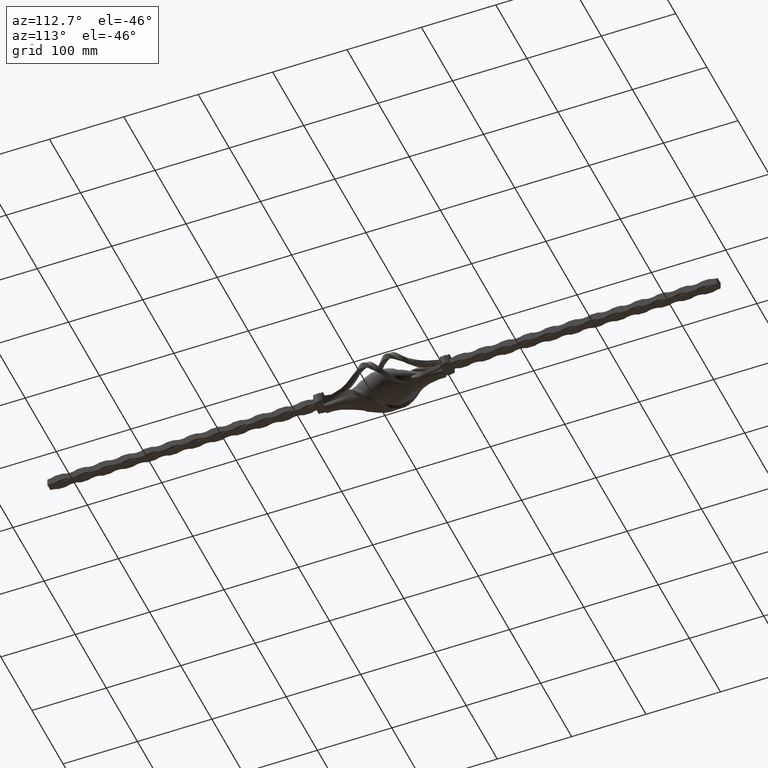
[diagram: clean part render]
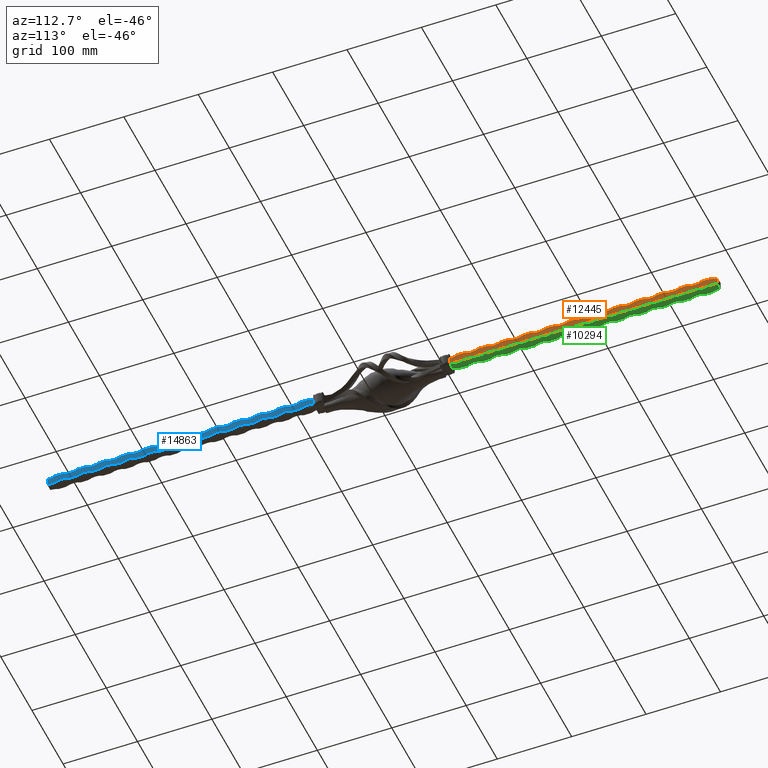
[diagram: same view with three faces highlighted in distinct colors, each labeled with its STEP entity id]
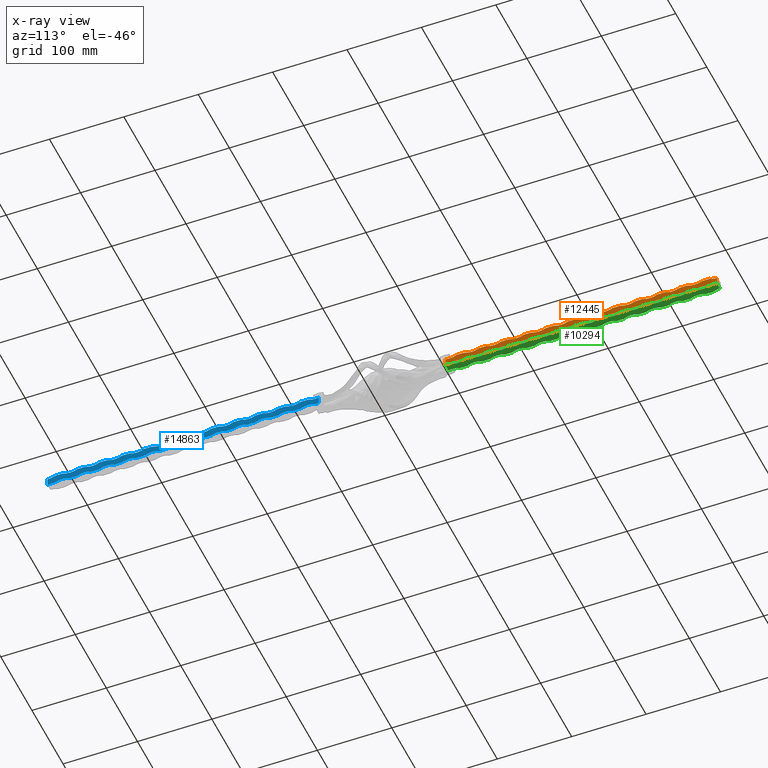
[diagram: x-ray of the same camera — body ghosted, the three highlighted faces saturated]
A machine part, auxiliary view with three faces highlighted in distinct colors.
The next image is the same camera in x-ray (body ghosted, the three faces saturated) — at least one of them is partly hidden behind the body in this view.
Their STEP definitions:

[orange] entity #12445 — the highlighted planar face has unit normal (-1, 0, 0).
#110 = VERTEX_POINT ( 'NONE', #2986 ) ;
#119 = AXIS2_PLACEMENT_3D ( 'NONE', #1190, #26549, #24383 ) ;
#135 = ORIENTED_EDGE ( 'NONE', *, *, #25361, .T. ) ;
#188 = CARTESIAN_POINT ( 'NONE',  ( 8.999999999999944933, 240.0000000000000000, 3.000000000000180744 ) ) ;
#278 = CARTESIAN_POINT ( 'NONE',  ( 8.999999999999943157, 169.9999999999999716, 3.000000000000183853 ) ) ;
#318 = EDGE_CURVE ( 'NONE', #13218, #13002, #20416, .T. ) ;
#340 = CARTESIAN_POINT ( 'NONE',  ( 9.000000000000042633, 270.0000000000000000, 33.75000000000009948 ) ) ;
#398 = CIRCLE ( 'NONE', #11600, 21.25000000000004263 ) ;
#455 = AXIS2_PLACEMENT_3D ( 'NONE', #26783, #3298, #20306 ) ;
#554 = CIRCLE ( 'NONE', #16922, 21.25000000000003197 ) ;
#591 = VECTOR ( 'NONE', #18704, 1000.000000000000000 ) ;
#595 = DIRECTION ( 'NONE',  ( -0.000000000000000000, -1.000000000000000000, -0.000000000000000000 ) ) ;
#681 = VECTOR ( 'NONE', #2548, 1000.000000000000000 ) ;
#718 = VERTEX_POINT ( 'NONE', #20813 ) ;
#841 = VERTEX_POINT ( 'NONE', #27082 ) ;
#843 = ORIENTED_EDGE ( 'NONE', *, *, #13074, .T. ) ;
#903 = DIRECTION ( 'NONE',  ( -0.000000000000000000, -1.000000000000000000, -0.000000000000000000 ) ) ;
#954 = AXIS2_PLACEMENT_3D ( 'NONE', #12363, #20988, #5886 ) ;
#1030 = DIRECTION ( 'NONE',  ( -0.000000000000000000, -1.000000000000000000, -0.000000000000000000 ) ) ;
#1068 = CARTESIAN_POINT ( 'NONE',  ( 8.999999999999941380, 280.0000000000000000, -15.74999999999986500 ) ) ;
#1078 = EDGE_CURVE ( 'NONE', #1651, #12430, #13950, .T. ) ;
#1139 = CARTESIAN_POINT ( 'NONE',  ( 9.000000000000063949, 229.9999999999999716, 15.00000000000006395 ) ) ;
#1188 = DIRECTION ( 'NONE',  ( -0.000000000000000000, -1.000000000000000000, -0.000000000000000000 ) ) ;
#1190 = CARTESIAN_POINT ( 'NONE',  ( 8.999999999999959144, 390.0000000000000000, 33.75000000000009948 ) ) ;
#1298 = CARTESIAN_POINT ( 'NONE',  ( 8.999999999999944933, 120.0000000000000142, 3.000000000000180744 ) ) ;
#1437 = CARTESIAN_POINT ( 'NONE',  ( 8.999999999999943157, 159.9999999999999716, -15.74999999999986500 ) ) ;
#1464 = ORIENTED_EDGE ( 'NONE', *, *, #17022, .T. ) ;
#1495 = CARTESIAN_POINT ( 'NONE',  ( 8.999999999999932498, 340.0000000000000568, 15.00000000000006395 ) ) ;
#1534 = LINE ( 'NONE', #22607, #13771 ) ;
#1572 = VERTEX_POINT ( 'NONE', #7812 ) ;
#1651 = VERTEX_POINT ( 'NONE', #7905 ) ;
#1656 = CIRCLE ( 'NONE', #5402, 21.25000000000004263 ) ;
#1711 = CARTESIAN_POINT ( 'NONE',  ( 8.999999999999939604, 339.9999999999999432, -15.74999999999986500 ) ) ;
#1765 = DIRECTION ( 'NONE',  ( 0.000000000000000000, -2.612289469706246925E-15, 1.000000000000000000 ) ) ;
#1795 = VERTEX_POINT ( 'NONE', #19727 ) ;
#1818 = ORIENTED_EDGE ( 'NONE', *, *, #27992, .F. ) ;
#1887 = DIRECTION ( 'NONE',  ( -1.000000000000000000, 0.000000000000000000, 0.000000000000000000 ) ) ;
#2066 = EDGE_CURVE ( 'NONE', #14477, #12430, #2716, .T. ) ;
#2106 = CARTESIAN_POINT ( 'NONE',  ( 8.999999999999937828, 85.00000000000000000, 13.09661044767718607 ) ) ;
#2181 = DIRECTION ( 'NONE',  ( 0.000000000000000000, 0.000000000000000000, 1.000000000000000000 ) ) ;
#2189 = CARTESIAN_POINT ( 'NONE',  ( 8.999999999999941380, 250.0000000000000000, -15.74999999999986500 ) ) ;
#2344 = CARTESIAN_POINT ( 'NONE',  ( 8.999999999999937828, 450.0000000000000000, 2.999999999999937828 ) ) ;
#2349 = EDGE_CURVE ( 'NONE', #1651, #27788, #19646, .T. ) ;
#2385 = LINE ( 'NONE', #4126, #19013 ) ;
#2394 = DIRECTION ( 'NONE',  ( 0.000000000000000000, 0.000000000000000000, 1.000000000000000000 ) ) ;
#2528 = CARTESIAN_POINT ( 'NONE',  ( 9.000000000000126121, 139.9999999999999716, 15.00000000000006395 ) ) ;
#2548 = DIRECTION ( 'NONE',  ( -0.000000000000000000, -1.000000000000000000, -0.000000000000000000 ) ) ;
#2621 = VERTEX_POINT ( 'NONE', #6337 ) ;
#2660 = CIRCLE ( 'NONE', #26898, 21.25000000000004263 ) ;
#2668 = EDGE_CURVE ( 'NONE', #14553, #19601, #25102, .T. ) ;
#2716 = LINE ( 'NONE', #19557, #18641 ) ;
#2723 = CARTESIAN_POINT ( 'NONE',  ( 8.999999999999937828, 410.0000000000000568, 3.000000000000183853 ) ) ;
#2986 = CARTESIAN_POINT ( 'NONE',  ( 8.999999999999937828, 85.00000000000000000, 2.999999999999937828 ) ) ;
#3060 = AXIS2_PLACEMENT_3D ( 'NONE', #22806, #9514, #18204 ) ;
#3073 = EDGE_CURVE ( 'NONE', #7758, #7223, #15570, .T. ) ;
#3103 = DIRECTION ( 'NONE',  ( 0.000000000000000000, 1.959217102279684996E-15, 1.000000000000000000 ) ) ;
#3139 = DIRECTION ( 'NONE',  ( -1.000000000000000000, 0.000000000000000000, 0.000000000000000000 ) ) ;
#3163 = CIRCLE ( 'NONE', #7164, 21.25000000000003197 ) ;
#3198 = EDGE_CURVE ( 'NONE', #15495, #23557, #13553, .T. ) ;
#3211 = VECTOR ( 'NONE', #18012, 1000.000000000000000 ) ;
#3298 = DIRECTION ( 'NONE',  ( 1.000000000000000000, -0.000000000000000000, -0.000000000000000000 ) ) ;
#3360 = VECTOR ( 'NONE', #4141, 1000.000000000000000 ) ;
#3382 = DIRECTION ( 'NONE',  ( -0.000000000000000000, -1.000000000000000000, -0.000000000000000000 ) ) ;
#3441 = LINE ( 'NONE', #2344, #14328 ) ;
#3471 = CARTESIAN_POINT ( 'NONE',  ( 8.999999999999937828, 450.0000000000000000, 2.999999999999937828 ) ) ;
#3473 = EDGE_CURVE ( 'NONE', #24811, #18054, #8785, .T. ) ;
#3589 = ORIENTED_EDGE ( 'NONE', *, *, #26847, .F. ) ;
#3726 = ORIENTED_EDGE ( 'NONE', *, *, #20244, .F. ) ;
#3741 = DIRECTION ( 'NONE',  ( -0.000000000000000000, -1.000000000000000000, -0.000000000000000000 ) ) ;
#3774 = DIRECTION ( 'NONE',  ( -1.000000000000000000, 0.000000000000000000, 0.000000000000000000 ) ) ;
#3783 = ORIENTED_EDGE ( 'NONE', *, *, #1078, .F. ) ;
#3852 = CARTESIAN_POINT ( 'NONE',  ( 8.999999999999932498, 280.0000000000002274, 15.00000000000006395 ) ) ;
#4075 = VECTOR ( 'NONE', #18479, 1000.000000000000000 ) ;
#4096 = ORIENTED_EDGE ( 'NONE', *, *, #14255, .F. ) ;
#4109 = EDGE_CURVE ( 'NONE', #18239, #4409, #25401, .T. ) ;
#4126 = CARTESIAN_POINT ( 'NONE',  ( 8.999999999999937828, 450.0000000000000000, 2.999999999999937828 ) ) ;
#4141 = DIRECTION ( 'NONE',  ( -0.000000000000000000, -1.000000000000000000, -0.000000000000000000 ) ) ;
#4156 = DIRECTION ( 'NONE',  ( 0.000000000000000000, 0.000000000000000000, 1.000000000000000000 ) ) ;
#4241 = EDGE_LOOP ( 'NONE', ( #9798, #843, #18594, #23032, #10590, #22024, #15254, #19577, #15770, #4604, #8470, #20503, #13087, #22483, #22842, #12713, #26340, #4383, #17777, #5932, #27627, #135, #4096, #21896, #15602, #11110, #5074, #23893, #1818, #11148, #3783, #13968, #26366, #26232, #26614, #16286, #14822, #17461, #18439, #16169, #9597, #13378, #25356, #12494, #20129, #12307, #6145, #14643, #3589, #16759, #3726, #1464 ) ) ;
#4330 = EDGE_CURVE ( 'NONE', #12354, #13649, #4340, .T. ) ;
#4340 = CIRCLE ( 'NONE', #17688, 21.25000000000004263 ) ;
#4383 = ORIENTED_EDGE ( 'NONE', *, *, #4330, .T. ) ;
#4409 = VERTEX_POINT ( 'NONE', #15662 ) ;
#4604 = ORIENTED_EDGE ( 'NONE', *, *, #24443, .T. ) ;
#4651 = CARTESIAN_POINT ( 'NONE',  ( 9.000000000000021316, 290.0000000000000000, 15.00000000000006395 ) ) ;
#4661 = CIRCLE ( 'NONE', #14912, 21.25000000000004263 ) ;
#4671 = EDGE_CURVE ( 'NONE', #26932, #19601, #5667, .T. ) ;
#4764 = CARTESIAN_POINT ( 'NONE',  ( 8.999999999999944933, 130.0000000000000000, -15.74999999999986500 ) ) ;
#4839 = EDGE_CURVE ( 'NONE', #24102, #21707, #10095, .T. ) ;
#4948 = CARTESIAN_POINT ( 'NONE',  ( 8.999999999999937828, 450.0000000000000000, 15.00000000000006395 ) ) ;
#4991 = VECTOR ( 'NONE', #7147, 1000.000000000000000 ) ;
#5017 = CIRCLE ( 'NONE', #14745, 21.25000000000004263 ) ;
#5074 = ORIENTED_EDGE ( 'NONE', *, *, #25997, .F. ) ;
#5130 = PLANE ( 'NONE',  #3060 ) ;
#5245 = DIRECTION ( 'NONE',  ( 0.000000000000000000, 0.000000000000000000, 1.000000000000000000 ) ) ;
#5355 = LINE ( 'NONE', #11668, #27804 ) ;
#5402 = AXIS2_PLACEMENT_3D ( 'NONE', #1711, #3774, #20898 ) ;
#5583 = CARTESIAN_POINT ( 'NONE',  ( 8.999999999999937828, 450.0000000000000000, 15.00000000000006395 ) ) ;
#5646 = CARTESIAN_POINT ( 'NONE',  ( 8.999999999999937828, 450.0000000000000000, 2.999999999999937828 ) ) ;
#5667 = LINE ( 'NONE', #22089, #4991 ) ;
#5682 = LINE ( 'NONE', #4948, #26752 ) ;
#5886 = DIRECTION ( 'NONE',  ( 0.000000000000000000, 1.306144734853123462E-15, 1.000000000000000000 ) ) ;
#5932 = ORIENTED_EDGE ( 'NONE', *, *, #10873, .T. ) ;
#5950 = CIRCLE ( 'NONE', #26732, 21.25000000000004263 ) ;
#6044 = CARTESIAN_POINT ( 'NONE',  ( 8.999999999999944933, 390.0000000000000000, 3.000000000000180744 ) ) ;
#6106 = AXIS2_PLACEMENT_3D ( 'NONE', #340, #17765, #19958 ) ;
#6145 = ORIENTED_EDGE ( 'NONE', *, *, #4109, .F. ) ;
#6160 = LINE ( 'NONE', #7573, #22820 ) ;
#6231 = VERTEX_POINT ( 'NONE', #11340 ) ;
#6303 = LINE ( 'NONE', #5583, #19170 ) ;
#6306 = EDGE_CURVE ( 'NONE', #12354, #26203, #14470, .T. ) ;
#6337 = CARTESIAN_POINT ( 'NONE',  ( 8.999999999999932498, 220.0000000000002842, 15.00000000000006395 ) ) ;
#6586 = DIRECTION ( 'NONE',  ( -0.000000000000000000, -1.000000000000000000, -0.000000000000000000 ) ) ;
#6635 = EDGE_CURVE ( 'NONE', #11358, #13002, #5950, .T. ) ;
#6858 = VECTOR ( 'NONE', #595, 1000.000000000000000 ) ;
#7005 = EDGE_CURVE ( 'NONE', #11358, #13941, #1534, .T. ) ;
#7027 = VERTEX_POINT ( 'NONE', #25148 ) ;
#7039 = EDGE_CURVE ( 'NONE', #20776, #4409, #6303, .T. ) ;
#7045 = CARTESIAN_POINT ( 'NONE',  ( 8.999999999999937828, 450.0000000000000000, 15.00000000000006395 ) ) ;
#7147 = DIRECTION ( 'NONE',  ( -0.000000000000000000, -1.000000000000000000, -0.000000000000000000 ) ) ;
#7164 = AXIS2_PLACEMENT_3D ( 'NONE', #17920, #13595, #24431 ) ;
#7221 = VERTEX_POINT ( 'NONE', #3852 ) ;
#7223 = VERTEX_POINT ( 'NONE', #12620 ) ;
#7299 = AXIS2_PLACEMENT_3D ( 'NONE', #1437, #14163, #18792 ) ;
#7355 = CARTESIAN_POINT ( 'NONE',  ( 9.000000000000001776, 319.9999999999999432, 15.00000000000006395 ) ) ;
#7478 = DIRECTION ( 'NONE',  ( -0.000000000000000000, -1.000000000000000000, -0.000000000000000000 ) ) ;
#7491 = CARTESIAN_POINT ( 'NONE',  ( 8.999999999999944933, 300.0000000000000000, 3.000000000000180744 ) ) ;
#7548 = EDGE_CURVE ( 'NONE', #17559, #18054, #22964, .T. ) ;
#7573 = CARTESIAN_POINT ( 'NONE',  ( 8.999999999999937828, 450.0000000000000000, 2.999999999999937828 ) ) ;
#7635 = DIRECTION ( 'NONE',  ( 0.000000000000000000, 0.000000000000000000, 1.000000000000000000 ) ) ;
#7656 = DIRECTION ( 'NONE',  ( -1.000000000000000000, 0.000000000000000000, 0.000000000000000000 ) ) ;
#7696 = EDGE_CURVE ( 'NONE', #20776, #2621, #19192, .T. ) ;
#7758 = VERTEX_POINT ( 'NONE', #2106 ) ;
#7812 = CARTESIAN_POINT ( 'NONE',  ( 8.999999999999944933, 110.0000000000000426, 3.000000000000183853 ) ) ;
#7889 = EDGE_CURVE ( 'NONE', #25602, #1795, #14172, .T. ) ;
#7905 = CARTESIAN_POINT ( 'NONE',  ( 8.999999999999937828, 410.0000000000000000, 15.00000000000006395 ) ) ;
#8013 = CARTESIAN_POINT ( 'NONE',  ( 8.999999999999941380, 320.0000000000000000, 3.000000000000183853 ) ) ;
#8021 = DIRECTION ( 'NONE',  ( 0.000000000000000000, -1.306144734853123462E-15, 1.000000000000000000 ) ) ;
#8025 = DIRECTION ( 'NONE',  ( -1.000000000000000000, 0.000000000000000000, 0.000000000000000000 ) ) ;
#8266 = CARTESIAN_POINT ( 'NONE',  ( 8.999999999999944933, 210.0000000000000000, 3.000000000000180744 ) ) ;
#8470 = ORIENTED_EDGE ( 'NONE', *, *, #8963, .F. ) ;
#8553 = VERTEX_POINT ( 'NONE', #9841 ) ;
#8570 = DIRECTION ( 'NONE',  ( 1.000000000000000000, -0.000000000000000000, -0.000000000000000000 ) ) ;
#8600 = CARTESIAN_POINT ( 'NONE',  ( 8.999999999999944933, 270.0000000000000000, 3.000000000000180744 ) ) ;
#8704 = VECTOR ( 'NONE', #11618, 1000.000000000000000 ) ;
#8772 = VERTEX_POINT ( 'NONE', #1298 ) ;
#8785 = CIRCLE ( 'NONE', #13157, 21.25000000000004263 ) ;
#8963 = EDGE_CURVE ( 'NONE', #25598, #18853, #2385, .T. ) ;
#9107 = AXIS2_PLACEMENT_3D ( 'NONE', #26600, #20504, #16027 ) ;
#9150 = AXIS2_PLACEMENT_3D ( 'NONE', #11734, #16075, #26829 ) ;
#9299 = CIRCLE ( 'NONE', #455, 21.25000000000003197 ) ;
#9514 = DIRECTION ( 'NONE',  ( -1.000000000000000000, 0.000000000000000000, 0.000000000000000000 ) ) ;
#9587 = LINE ( 'NONE', #12481, #15338 ) ;
#9597 = ORIENTED_EDGE ( 'NONE', *, *, #21446, .F. ) ;
#9633 = EDGE_CURVE ( 'NONE', #718, #6231, #23790, .T. ) ;
#9707 = EDGE_CURVE ( 'NONE', #8772, #1572, #24147, .T. ) ;
#9798 = ORIENTED_EDGE ( 'NONE', *, *, #3073, .F. ) ;
#9841 = CARTESIAN_POINT ( 'NONE',  ( 8.999999999999937828, 440.0000000000000000, 3.000000000000183853 ) ) ;
#9895 = VECTOR ( 'NONE', #1188, 1000.000000000000000 ) ;
#10015 = DIRECTION ( 'NONE',  ( -0.000000000000000000, -1.000000000000000000, -0.000000000000000000 ) ) ;
#10053 = CARTESIAN_POINT ( 'NONE',  ( 8.999999999999941380, 260.0000000000000000, 3.000000000000183853 ) ) ;
#10095 = LINE ( 'NONE', #23122, #591 ) ;
#10161 = VECTOR ( 'NONE', #14706, 1000.000000000000000 ) ;
#10222 = CARTESIAN_POINT ( 'NONE',  ( 8.999999999999932498, 160.0000000000003411, 15.00000000000006395 ) ) ;
#10589 = VERTEX_POINT ( 'NONE', #12615 ) ;
#10590 = ORIENTED_EDGE ( 'NONE', *, *, #9707, .F. ) ;
#10603 = CARTESIAN_POINT ( 'NONE',  ( 8.999999999999941380, 290.0000000000000568, 3.000000000000183853 ) ) ;
#10753 = CARTESIAN_POINT ( 'NONE',  ( 8.999999999999941380, 310.0000000000000000, -15.74999999999986500 ) ) ;
#10850 = DIRECTION ( 'NONE',  ( 1.000000000000000000, -0.000000000000000000, -0.000000000000000000 ) ) ;
#10873 = EDGE_CURVE ( 'NONE', #841, #13655, #1656, .T. ) ;
#10995 = EDGE_CURVE ( 'NONE', #841, #13649, #20323, .T. ) ;
#11110 = ORIENTED_EDGE ( 'NONE', *, *, #22860, .T. ) ;
#11148 = ORIENTED_EDGE ( 'NONE', *, *, #2066, .T. ) ;
#11294 = CARTESIAN_POINT ( 'NONE',  ( 8.999999999999937828, 450.0000000000000000, 15.00000000000006395 ) ) ;
#11340 = CARTESIAN_POINT ( 'NONE',  ( 8.999999999999932498, 250.0000000000002274, 15.00000000000006395 ) ) ;
#11358 = VERTEX_POINT ( 'NONE', #188 ) ;
#11600 = AXIS2_PLACEMENT_3D ( 'NONE', #20288, #24956, #18182 ) ;
#11618 = DIRECTION ( 'NONE',  ( -0.000000000000000000, -1.000000000000000000, -0.000000000000000000 ) ) ;
#11657 = CARTESIAN_POINT ( 'NONE',  ( 8.999999999999941380, 190.0000000000000000, -15.74999999999986500 ) ) ;
#11668 = CARTESIAN_POINT ( 'NONE',  ( 8.999999999999937828, 450.0000000000000000, 2.999999999999937828 ) ) ;
#11734 = CARTESIAN_POINT ( 'NONE',  ( 9.000000000000001776, 329.9999999999999432, 33.75000000000009948 ) ) ;
#11831 = EDGE_CURVE ( 'NONE', #23422, #7027, #19260, .T. ) ;
#12010 = CARTESIAN_POINT ( 'NONE',  ( 8.999999999999937828, 450.0000000000000000, 15.00000000000006395 ) ) ;
#12142 = CIRCLE ( 'NONE', #18727, 21.25000000000003197 ) ;
#12253 = EDGE_CURVE ( 'NONE', #12610, #7221, #5682, .T. ) ;
#12307 = ORIENTED_EDGE ( 'NONE', *, *, #7039, .T. ) ;
#12354 = VERTEX_POINT ( 'NONE', #7491 ) ;
#12363 = CARTESIAN_POINT ( 'NONE',  ( 9.000000000000104805, 180.0000000000000000, 33.75000000000009948 ) ) ;
#12413 = AXIS2_PLACEMENT_3D ( 'NONE', #13921, #16470, #18639 ) ;
#12430 = VERTEX_POINT ( 'NONE', #22529 ) ;
#12434 = VERTEX_POINT ( 'NONE', #1139 ) ;
#12445 = ADVANCED_FACE ( 'NONE', ( #25029 ), #5130, .F. ) ;
#12481 = CARTESIAN_POINT ( 'NONE',  ( 8.999999999999937828, 450.0000000000000000, 15.00000000000006395 ) ) ;
#12494 = ORIENTED_EDGE ( 'NONE', *, *, #14389, .T. ) ;
#12610 = VERTEX_POINT ( 'NONE', #4651 ) ;
#12615 = CARTESIAN_POINT ( 'NONE',  ( 8.999999999999944933, 90.00000000000004263, 3.000000000000180744 ) ) ;
#12620 = CARTESIAN_POINT ( 'NONE',  ( 9.000000000000166978, 100.0000000000000284, 15.00000000000006395 ) ) ;
#12713 = ORIENTED_EDGE ( 'NONE', *, *, #15756, .T. ) ;
#12922 = CARTESIAN_POINT ( 'NONE',  ( 8.999999999999937828, 450.0000000000000000, 2.999999999999937828 ) ) ;
#12928 = DIRECTION ( 'NONE',  ( -1.000000000000000000, 0.000000000000000000, 0.000000000000000000 ) ) ;
#12991 = EDGE_CURVE ( 'NONE', #18239, #14702, #14481, .T. ) ;
#13002 = VERTEX_POINT ( 'NONE', #10053 ) ;
#13074 = EDGE_CURVE ( 'NONE', #7758, #110, #16515, .T. ) ;
#13087 = ORIENTED_EDGE ( 'NONE', *, *, #7005, .F. ) ;
#13136 = DIRECTION ( 'NONE',  ( 0.000000000000000000, 2.612289469706246925E-15, 1.000000000000000000 ) ) ;
#13157 = AXIS2_PLACEMENT_3D ( 'NONE', #26115, #12928, #2181 ) ;
#13218 = VERTEX_POINT ( 'NONE', #8600 ) ;
#13303 = DIRECTION ( 'NONE',  ( -1.000000000000000000, 0.000000000000000000, 0.000000000000000000 ) ) ;
#13319 = AXIS2_PLACEMENT_3D ( 'NONE', #1068, #18699, #16238 ) ;
#13320 = DIRECTION ( 'NONE',  ( -1.000000000000000000, 0.000000000000000000, 0.000000000000000000 ) ) ;
#13378 = ORIENTED_EDGE ( 'NONE', *, *, #9633, .T. ) ;
#13553 = CIRCLE ( 'NONE', #7299, 21.25000000000004263 ) ;
#13595 = DIRECTION ( 'NONE',  ( 1.000000000000000000, -0.000000000000000000, -0.000000000000000000 ) ) ;
#13598 = DIRECTION ( 'NONE',  ( -0.000000000000000000, -1.000000000000000000, -0.000000000000000000 ) ) ;
#13649 = VERTEX_POINT ( 'NONE', #8013 ) ;
#13655 = VERTEX_POINT ( 'NONE', #22741 ) ;
#13771 = VECTOR ( 'NONE', #3382, 1000.000000000000000 ) ;
#13785 = CARTESIAN_POINT ( 'NONE',  ( 8.999999999999944933, 420.0000000000000000, 3.000000000000180744 ) ) ;
#13829 = EDGE_CURVE ( 'NONE', #12610, #21461, #554, .T. ) ;
#13859 = DIRECTION ( 'NONE',  ( 1.000000000000000000, -0.000000000000000000, -0.000000000000000000 ) ) ;
#13864 = CARTESIAN_POINT ( 'NONE',  ( 8.999999999999937828, 450.0000000000000000, 2.999999999999937828 ) ) ;
#13921 = CARTESIAN_POINT ( 'NONE',  ( 8.999999999999937828, 420.0000000000000000, 33.75000000000009948 ) ) ;
#13925 = CARTESIAN_POINT ( 'NONE',  ( 8.999999999999944933, 180.0000000000000000, 3.000000000000180744 ) ) ;
#13941 = VERTEX_POINT ( 'NONE', #28124 ) ;
#13950 = CIRCLE ( 'NONE', #12413, 21.25000000000003197 ) ;
#13968 = ORIENTED_EDGE ( 'NONE', *, *, #2349, .T. ) ;
#14163 = DIRECTION ( 'NONE',  ( -1.000000000000000000, 0.000000000000000000, 0.000000000000000000 ) ) ;
#14172 = LINE ( 'NONE', #7045, #26740 ) ;
#14255 = EDGE_CURVE ( 'NONE', #24811, #16049, #21254, .T. ) ;
#14328 = VECTOR ( 'NONE', #21931, 1000.000000000000000 ) ;
#14389 = EDGE_CURVE ( 'NONE', #12434, #2621, #16464, .T. ) ;
#14470 = LINE ( 'NONE', #24904, #8704 ) ;
#14477 = VERTEX_POINT ( 'NONE', #19699 ) ;
#14481 = LINE ( 'NONE', #23269, #25684 ) ;
#14553 = VERTEX_POINT ( 'NONE', #7355 ) ;
#14643 = ORIENTED_EDGE ( 'NONE', *, *, #12991, .T. ) ;
#14702 = VERTEX_POINT ( 'NONE', #10222 ) ;
#14706 = DIRECTION ( 'NONE',  ( -0.000000000000000000, -1.000000000000000000, -0.000000000000000000 ) ) ;
#14745 = AXIS2_PLACEMENT_3D ( 'NONE', #23136, #8025, #7635 ) ;
#14822 = ORIENTED_EDGE ( 'NONE', *, *, #2668, .F. ) ;
#14912 = AXIS2_PLACEMENT_3D ( 'NONE', #4764, #13320, #2394 ) ;
#14920 = CARTESIAN_POINT ( 'NONE',  ( 9.000000000000083489, 210.0000000000000000, 33.75000000000009948 ) ) ;
#14981 = VERTEX_POINT ( 'NONE', #26074 ) ;
#15038 = DIRECTION ( 'NONE',  ( 1.000000000000000000, -0.000000000000000000, -0.000000000000000000 ) ) ;
#15254 = ORIENTED_EDGE ( 'NONE', *, *, #18974, .F. ) ;
#15338 = VECTOR ( 'NONE', #17003, 1000.000000000000000 ) ;
#15495 = VERTEX_POINT ( 'NONE', #22997 ) ;
#15507 = EDGE_CURVE ( 'NONE', #25598, #13941, #20863, .T. ) ;
#15570 = CIRCLE ( 'NONE', #25692, 21.25000000000003197 ) ;
#15602 = ORIENTED_EDGE ( 'NONE', *, *, #7548, .F. ) ;
#15662 = CARTESIAN_POINT ( 'NONE',  ( 8.999999999999932498, 190.0000000000003126, 15.00000000000006395 ) ) ;
#15756 = EDGE_CURVE ( 'NONE', #13218, #26203, #19804, .T. ) ;
#15770 = ORIENTED_EDGE ( 'NONE', *, *, #24301, .F. ) ;
#16027 = DIRECTION ( 'NONE',  ( 0.000000000000000000, 0.000000000000000000, 1.000000000000000000 ) ) ;
#16047 = CARTESIAN_POINT ( 'NONE',  ( 8.999999999999941380, 220.0000000000000000, -15.74999999999986500 ) ) ;
#16049 = VERTEX_POINT ( 'NONE', #24615 ) ;
#16075 = DIRECTION ( 'NONE',  ( 1.000000000000000000, -0.000000000000000000, -0.000000000000000000 ) ) ;
#16169 = ORIENTED_EDGE ( 'NONE', *, *, #12253, .T. ) ;
#16238 = DIRECTION ( 'NONE',  ( 0.000000000000000000, 0.000000000000000000, 1.000000000000000000 ) ) ;
#16268 = CIRCLE ( 'NONE', #18307, 21.25000000000004263 ) ;
#16286 = ORIENTED_EDGE ( 'NONE', *, *, #4671, .T. ) ;
#16464 = LINE ( 'NONE', #23730, #17143 ) ;
#16470 = DIRECTION ( 'NONE',  ( 1.000000000000000000, -0.000000000000000000, -0.000000000000000000 ) ) ;
#16515 = LINE ( 'NONE', #17474, #26046 ) ;
#16659 = CIRCLE ( 'NONE', #119, 21.25000000000003197 ) ;
#16682 = VERTEX_POINT ( 'NONE', #13925 ) ;
#16759 = ORIENTED_EDGE ( 'NONE', *, *, #11831, .T. ) ;
#16922 = AXIS2_PLACEMENT_3D ( 'NONE', #17183, #8570, #13136 ) ;
#17003 = DIRECTION ( 'NONE',  ( -0.000000000000000000, -1.000000000000000000, -0.000000000000000000 ) ) ;
#17022 = EDGE_CURVE ( 'NONE', #24582, #7223, #9587, .T. ) ;
#17100 = DIRECTION ( 'NONE',  ( 1.000000000000000000, -0.000000000000000000, -0.000000000000000000 ) ) ;
#17143 = VECTOR ( 'NONE', #21645, 1000.000000000000000 ) ;
#17151 = VECTOR ( 'NONE', #27478, 1000.000000000000000 ) ;
#17183 = CARTESIAN_POINT ( 'NONE',  ( 9.000000000000021316, 300.0000000000000000, 33.75000000000009948 ) ) ;
#17287 = DIRECTION ( 'NONE',  ( 0.000000000000000000, 0.000000000000000000, 1.000000000000000000 ) ) ;
#17375 = CARTESIAN_POINT ( 'NONE',  ( 8.999999999999937828, 449.9999999999999432, 33.75000000000009948 ) ) ;
#17461 = ORIENTED_EDGE ( 'NONE', *, *, #25179, .T. ) ;
#17474 = CARTESIAN_POINT ( 'NONE',  ( 8.999999999999937828, 85.00000000000000000, 15.00000000000006395 ) ) ;
#17559 = VERTEX_POINT ( 'NONE', #13785 ) ;
#17688 = AXIS2_PLACEMENT_3D ( 'NONE', #10753, #25949, #19456 ) ;
#17765 = DIRECTION ( 'NONE',  ( 1.000000000000000000, -0.000000000000000000, -0.000000000000000000 ) ) ;
#17777 = ORIENTED_EDGE ( 'NONE', *, *, #10995, .F. ) ;
#17920 = CARTESIAN_POINT ( 'NONE',  ( 9.000000000000063949, 240.0000000000000000, 33.75000000000009948 ) ) ;
#18012 = DIRECTION ( 'NONE',  ( -0.000000000000000000, -1.000000000000000000, -0.000000000000000000 ) ) ;
#18054 = VERTEX_POINT ( 'NONE', #2723 ) ;
#18116 = DIRECTION ( 'NONE',  ( -0.000000000000000000, -1.000000000000000000, -0.000000000000000000 ) ) ;
#18182 = DIRECTION ( 'NONE',  ( 0.000000000000000000, 0.000000000000000000, 1.000000000000000000 ) ) ;
#18204 = DIRECTION ( 'NONE',  ( 0.000000000000000000, 0.000000000000000000, 1.000000000000000000 ) ) ;
#18239 = VERTEX_POINT ( 'NONE', #22872 ) ;
#18307 = AXIS2_PLACEMENT_3D ( 'NONE', #11657, #7656, #24940 ) ;
#18439 = ORIENTED_EDGE ( 'NONE', *, *, #13829, .F. ) ;
#18479 = DIRECTION ( 'NONE',  ( -0.000000000000000000, -1.000000000000000000, -0.000000000000000000 ) ) ;
#18571 = VECTOR ( 'NONE', #10015, 1000.000000000000000 ) ;
#18594 = ORIENTED_EDGE ( 'NONE', *, *, #22352, .F. ) ;
#18639 = DIRECTION ( 'NONE',  ( 0.000000000000000000, 0.000000000000000000, 1.000000000000000000 ) ) ;
#18641 = VECTOR ( 'NONE', #6586, 1000.000000000000000 ) ;
#18699 = DIRECTION ( 'NONE',  ( -1.000000000000000000, 0.000000000000000000, 0.000000000000000000 ) ) ;
#18704 = DIRECTION ( 'NONE',  ( 0.000000000000000000, 0.000000000000000000, -1.000000000000000000 ) ) ;
#18727 = AXIS2_PLACEMENT_3D ( 'NONE', #17375, #10850, #17287 ) ;
#18792 = DIRECTION ( 'NONE',  ( 0.000000000000000000, 0.000000000000000000, 1.000000000000000000 ) ) ;
#18853 = VERTEX_POINT ( 'NONE', #22338 ) ;
#18974 = EDGE_CURVE ( 'NONE', #15495, #19206, #19063, .T. ) ;
#19013 = VECTOR ( 'NONE', #19217, 1000.000000000000000 ) ;
#19063 = LINE ( 'NONE', #26871, #6858 ) ;
#19170 = VECTOR ( 'NONE', #7478, 1000.000000000000000 ) ;
#19192 = CIRCLE ( 'NONE', #24680, 21.25000000000003197 ) ;
#19206 = VERTEX_POINT ( 'NONE', #22039 ) ;
#19217 = DIRECTION ( 'NONE',  ( -0.000000000000000000, -1.000000000000000000, -0.000000000000000000 ) ) ;
#19260 = LINE ( 'NONE', #12010, #18571 ) ;
#19456 = DIRECTION ( 'NONE',  ( 0.000000000000000000, 0.000000000000000000, 1.000000000000000000 ) ) ;
#19557 = CARTESIAN_POINT ( 'NONE',  ( 8.999999999999937828, 450.0000000000000000, 15.00000000000006395 ) ) ;
#19577 = ORIENTED_EDGE ( 'NONE', *, *, #3198, .T. ) ;
#19601 = VERTEX_POINT ( 'NONE', #1495 ) ;
#19643 = VECTOR ( 'NONE', #903, 1000.000000000000000 ) ;
#19646 = LINE ( 'NONE', #21431, #3360 ) ;
#19699 = CARTESIAN_POINT ( 'NONE',  ( 8.999999999999937828, 439.9999999999999432, 15.00000000000006395 ) ) ;
#19727 = CARTESIAN_POINT ( 'NONE',  ( 8.999999999999932498, 370.0000000000000568, 15.00000000000006395 ) ) ;
#19804 = CIRCLE ( 'NONE', #13319, 21.25000000000004263 ) ;
#19958 = DIRECTION ( 'NONE',  ( 0.000000000000000000, 2.612289469706246925E-15, 1.000000000000000000 ) ) ;
#19981 = LINE ( 'NONE', #24733, #19643 ) ;
#20129 = ORIENTED_EDGE ( 'NONE', *, *, #7696, .F. ) ;
#20189 = EDGE_CURVE ( 'NONE', #12434, #6231, #3163, .T. ) ;
#20198 = AXIS2_PLACEMENT_3D ( 'NONE', #16047, #3139, #5245 ) ;
#20244 = EDGE_CURVE ( 'NONE', #24582, #7027, #9299, .T. ) ;
#20288 = CARTESIAN_POINT ( 'NONE',  ( 8.999999999999937828, 430.0000000000000000, -15.74999999999986500 ) ) ;
#20306 = DIRECTION ( 'NONE',  ( 0.000000000000000000, 1.959217102279684996E-15, 1.000000000000000000 ) ) ;
#20323 = LINE ( 'NONE', #27736, #10161 ) ;
#20416 = LINE ( 'NONE', #5646, #9895 ) ;
#20503 = ORIENTED_EDGE ( 'NONE', *, *, #15507, .T. ) ;
#20504 = DIRECTION ( 'NONE',  ( 1.000000000000000000, -0.000000000000000000, -0.000000000000000000 ) ) ;
#20645 = CARTESIAN_POINT ( 'NONE',  ( 8.999999999999932498, 400.0000000000000568, 15.00000000000006395 ) ) ;
#20721 = VECTOR ( 'NONE', #22227, 1000.000000000000000 ) ;
#20776 = VERTEX_POINT ( 'NONE', #21844 ) ;
#20813 = CARTESIAN_POINT ( 'NONE',  ( 9.000000000000042633, 260.0000000000000000, 15.00000000000006395 ) ) ;
#20863 = CIRCLE ( 'NONE', #20198, 21.25000000000004263 ) ;
#20898 = DIRECTION ( 'NONE',  ( 0.000000000000000000, 0.000000000000000000, 1.000000000000000000 ) ) ;
#20988 = DIRECTION ( 'NONE',  ( 1.000000000000000000, -0.000000000000000000, -0.000000000000000000 ) ) ;
#21254 = LINE ( 'NONE', #13864, #3211 ) ;
#21317 = CIRCLE ( 'NONE', #9107, 21.25000000000003197 ) ;
#21414 = LINE ( 'NONE', #3471, #4075 ) ;
#21431 = CARTESIAN_POINT ( 'NONE',  ( 8.999999999999937828, 450.0000000000000000, 15.00000000000006395 ) ) ;
#21446 = EDGE_CURVE ( 'NONE', #718, #7221, #23214, .T. ) ;
#21461 = VERTEX_POINT ( 'NONE', #21805 ) ;
#21645 = DIRECTION ( 'NONE',  ( -0.000000000000000000, -1.000000000000000000, -0.000000000000000000 ) ) ;
#21707 = VERTEX_POINT ( 'NONE', #25218 ) ;
#21805 = CARTESIAN_POINT ( 'NONE',  ( 8.999999999999932498, 310.0000000000001705, 15.00000000000006395 ) ) ;
#21844 = CARTESIAN_POINT ( 'NONE',  ( 9.000000000000083489, 199.9999999999999716, 15.00000000000006395 ) ) ;
#21896 = ORIENTED_EDGE ( 'NONE', *, *, #3473, .T. ) ;
#21931 = DIRECTION ( 'NONE',  ( -0.000000000000000000, -1.000000000000000000, -0.000000000000000000 ) ) ;
#21962 = CARTESIAN_POINT ( 'NONE',  ( 8.999999999999937828, 450.0000000000000000, 12.50000000000006395 ) ) ;
#22024 = ORIENTED_EDGE ( 'NONE', *, *, #26794, .T. ) ;
#22039 = CARTESIAN_POINT ( 'NONE',  ( 8.999999999999944933, 140.0000000000000000, 3.000000000000183853 ) ) ;
#22089 = CARTESIAN_POINT ( 'NONE',  ( 8.999999999999937828, 450.0000000000000000, 15.00000000000006395 ) ) ;
#22227 = DIRECTION ( 'NONE',  ( -0.000000000000000000, -1.000000000000000000, -0.000000000000000000 ) ) ;
#22338 = CARTESIAN_POINT ( 'NONE',  ( 8.999999999999941380, 200.0000000000000000, 3.000000000000183853 ) ) ;
#22352 = EDGE_CURVE ( 'NONE', #10589, #110, #3441, .T. ) ;
#22483 = ORIENTED_EDGE ( 'NONE', *, *, #6635, .T. ) ;
#22529 = CARTESIAN_POINT ( 'NONE',  ( 8.999999999999932498, 430.0000000000000000, 15.00000000000006395 ) ) ;
#22607 = CARTESIAN_POINT ( 'NONE',  ( 8.999999999999937828, 450.0000000000000000, 2.999999999999937828 ) ) ;
#22741 = CARTESIAN_POINT ( 'NONE',  ( 8.999999999999939604, 350.0000000000000000, 3.000000000000183853 ) ) ;
#22793 = CARTESIAN_POINT ( 'NONE',  ( 9.000000000000166978, 90.00000000000002842, 33.75000000000009948 ) ) ;
#22806 = CARTESIAN_POINT ( 'NONE',  ( 8.999999999999937828, 450.0000000000000000, 15.00000000000006395 ) ) ;
#22820 = VECTOR ( 'NONE', #3741, 1000.000000000000000 ) ;
#22842 = ORIENTED_EDGE ( 'NONE', *, *, #318, .F. ) ;
#22860 = EDGE_CURVE ( 'NONE', #17559, #8553, #398, .T. ) ;
#22872 = CARTESIAN_POINT ( 'NONE',  ( 9.000000000000104805, 169.9999999999999716, 15.00000000000006395 ) ) ;
#22890 = EDGE_CURVE ( 'NONE', #14981, #13655, #6160, .T. ) ;
#22964 = LINE ( 'NONE', #25107, #17151 ) ;
#22997 = CARTESIAN_POINT ( 'NONE',  ( 8.999999999999944933, 149.9999999999999716, 3.000000000000180744 ) ) ;
#23032 = ORIENTED_EDGE ( 'NONE', *, *, #27765, .T. ) ;
#23122 = CARTESIAN_POINT ( 'NONE',  ( 8.999999999999937828, 450.0000000000000000, 15.00000000000006395 ) ) ;
#23136 = CARTESIAN_POINT ( 'NONE',  ( 8.999999999999944933, 100.0000000000000284, -15.74999999999986500 ) ) ;
#23214 = CIRCLE ( 'NONE', #6106, 21.25000000000003197 ) ;
#23269 = CARTESIAN_POINT ( 'NONE',  ( 8.999999999999937828, 450.0000000000000000, 15.00000000000006395 ) ) ;
#23402 = EDGE_CURVE ( 'NONE', #25602, #27788, #16659, .T. ) ;
#23422 = VERTEX_POINT ( 'NONE', #2528 ) ;
#23556 = CARTESIAN_POINT ( 'NONE',  ( 8.999999999999937828, 370.0000000000000000, -15.74999999999986500 ) ) ;
#23557 = VERTEX_POINT ( 'NONE', #278 ) ;
#23658 = CARTESIAN_POINT ( 'NONE',  ( 8.999999999999959144, 380.0000000000000000, 15.00000000000006395 ) ) ;
#23730 = CARTESIAN_POINT ( 'NONE',  ( 8.999999999999937828, 450.0000000000000000, 15.00000000000006395 ) ) ;
#23790 = LINE ( 'NONE', #11294, #20721 ) ;
#23893 = ORIENTED_EDGE ( 'NONE', *, *, #4839, .F. ) ;
#24051 = DIRECTION ( 'NONE',  ( 0.000000000000000000, 0.000000000000000000, 1.000000000000000000 ) ) ;
#24102 = VERTEX_POINT ( 'NONE', #21962 ) ;
#24147 = LINE ( 'NONE', #12922, #681 ) ;
#24301 = EDGE_CURVE ( 'NONE', #16682, #23557, #21414, .T. ) ;
#24383 = DIRECTION ( 'NONE',  ( 0.000000000000000000, -2.612289469706246925E-15, 1.000000000000000000 ) ) ;
#24431 = DIRECTION ( 'NONE',  ( 0.000000000000000000, 1.306144734853123462E-15, 1.000000000000000000 ) ) ;
#24443 = EDGE_CURVE ( 'NONE', #16682, #18853, #16268, .T. ) ;
#24582 = VERTEX_POINT ( 'NONE', #27965 ) ;
#24615 = CARTESIAN_POINT ( 'NONE',  ( 8.999999999999937828, 380.0000000000000000, 3.000000000000183853 ) ) ;
#24680 = AXIS2_PLACEMENT_3D ( 'NONE', #14920, #17100, #8021 ) ;
#24694 = EDGE_CURVE ( 'NONE', #26932, #1795, #25123, .T. ) ;
#24733 = CARTESIAN_POINT ( 'NONE',  ( 8.999999999999937828, 450.0000000000000000, 15.00000000000006395 ) ) ;
#24811 = VERTEX_POINT ( 'NONE', #6044 ) ;
#24904 = CARTESIAN_POINT ( 'NONE',  ( 8.999999999999937828, 450.0000000000000000, 2.999999999999937828 ) ) ;
#24940 = DIRECTION ( 'NONE',  ( 0.000000000000000000, 0.000000000000000000, 1.000000000000000000 ) ) ;
#24956 = DIRECTION ( 'NONE',  ( -1.000000000000000000, 0.000000000000000000, 0.000000000000000000 ) ) ;
#25029 = FACE_OUTER_BOUND ( 'NONE', #4241, .T. ) ;
#25102 = CIRCLE ( 'NONE', #9150, 21.25000000000003197 ) ;
#25107 = CARTESIAN_POINT ( 'NONE',  ( 8.999999999999937828, 450.0000000000000000, 2.999999999999937828 ) ) ;
#25123 = CIRCLE ( 'NONE', #25991, 21.25000000000003197 ) ;
#25148 = CARTESIAN_POINT ( 'NONE',  ( 8.999999999999932498, 130.0000000000003979, 15.00000000000006395 ) ) ;
#25179 = EDGE_CURVE ( 'NONE', #14553, #21461, #19981, .T. ) ;
#25218 = CARTESIAN_POINT ( 'NONE',  ( 8.999999999999937828, 450.0000000000000000, 2.999999999999937828 ) ) ;
#25356 = ORIENTED_EDGE ( 'NONE', *, *, #20189, .F. ) ;
#25361 = EDGE_CURVE ( 'NONE', #14981, #16049, #2660, .T. ) ;
#25401 = CIRCLE ( 'NONE', #954, 21.25000000000003197 ) ;
#25598 = VERTEX_POINT ( 'NONE', #8266 ) ;
#25602 = VERTEX_POINT ( 'NONE', #23658 ) ;
#25684 = VECTOR ( 'NONE', #27612, 1000.000000000000000 ) ;
#25692 = AXIS2_PLACEMENT_3D ( 'NONE', #22793, #13859, #3103 ) ;
#25949 = DIRECTION ( 'NONE',  ( -1.000000000000000000, 0.000000000000000000, 0.000000000000000000 ) ) ;
#25991 = AXIS2_PLACEMENT_3D ( 'NONE', #27696, #15038, #1765 ) ;
#25997 = EDGE_CURVE ( 'NONE', #21707, #8553, #5355, .T. ) ;
#26046 = VECTOR ( 'NONE', #26054, 1000.000000000000000 ) ;
#26054 = DIRECTION ( 'NONE',  ( 0.000000000000000000, 0.000000000000000000, -1.000000000000000000 ) ) ;
#26074 = CARTESIAN_POINT ( 'NONE',  ( 8.999999999999944933, 360.0000000000000000, 3.000000000000180744 ) ) ;
#26115 = CARTESIAN_POINT ( 'NONE',  ( 8.999999999999937828, 400.0000000000000000, -15.74999999999986500 ) ) ;
#26203 = VERTEX_POINT ( 'NONE', #10603 ) ;
#26232 = ORIENTED_EDGE ( 'NONE', *, *, #7889, .T. ) ;
#26340 = ORIENTED_EDGE ( 'NONE', *, *, #6306, .F. ) ;
#26366 = ORIENTED_EDGE ( 'NONE', *, *, #23402, .F. ) ;
#26549 = DIRECTION ( 'NONE',  ( 1.000000000000000000, -0.000000000000000000, -0.000000000000000000 ) ) ;
#26600 = CARTESIAN_POINT ( 'NONE',  ( 9.000000000000126121, 149.9999999999999716, 33.75000000000009948 ) ) ;
#26614 = ORIENTED_EDGE ( 'NONE', *, *, #24694, .F. ) ;
#26732 = AXIS2_PLACEMENT_3D ( 'NONE', #2189, #13303, #24051 ) ;
#26740 = VECTOR ( 'NONE', #13598, 1000.000000000000000 ) ;
#26752 = VECTOR ( 'NONE', #18116, 1000.000000000000000 ) ;
#26783 = CARTESIAN_POINT ( 'NONE',  ( 9.000000000000147438, 120.0000000000000000, 33.75000000000009948 ) ) ;
#26794 = EDGE_CURVE ( 'NONE', #8772, #19206, #4661, .T. ) ;
#26829 = DIRECTION ( 'NONE',  ( 0.000000000000000000, -2.612289469706246925E-15, 1.000000000000000000 ) ) ;
#26847 = EDGE_CURVE ( 'NONE', #23422, #14702, #21317, .T. ) ;
#26871 = CARTESIAN_POINT ( 'NONE',  ( 8.999999999999937828, 450.0000000000000000, 2.999999999999937828 ) ) ;
#26875 = CARTESIAN_POINT ( 'NONE',  ( 8.999999999999980460, 350.0000000000000000, 15.00000000000006395 ) ) ;
#26898 = AXIS2_PLACEMENT_3D ( 'NONE', #23556, #1887, #4156 ) ;
#26932 = VERTEX_POINT ( 'NONE', #26875 ) ;
#27082 = CARTESIAN_POINT ( 'NONE',  ( 8.999999999999944933, 329.9999999999999432, 3.000000000000180744 ) ) ;
#27478 = DIRECTION ( 'NONE',  ( -0.000000000000000000, -1.000000000000000000, -0.000000000000000000 ) ) ;
#27612 = DIRECTION ( 'NONE',  ( -0.000000000000000000, -1.000000000000000000, -0.000000000000000000 ) ) ;
#27627 = ORIENTED_EDGE ( 'NONE', *, *, #22890, .F. ) ;
#27696 = CARTESIAN_POINT ( 'NONE',  ( 8.999999999999980460, 360.0000000000000000, 33.75000000000009948 ) ) ;
#27736 = CARTESIAN_POINT ( 'NONE',  ( 8.999999999999937828, 450.0000000000000000, 2.999999999999937828 ) ) ;
#27765 = EDGE_CURVE ( 'NONE', #10589, #1572, #5017, .T. ) ;
#27788 = VERTEX_POINT ( 'NONE', #20645 ) ;
#27804 = VECTOR ( 'NONE', #1030, 1000.000000000000000 ) ;
#27965 = CARTESIAN_POINT ( 'NONE',  ( 9.000000000000147438, 109.9999999999999858, 15.00000000000006395 ) ) ;
#27992 = EDGE_CURVE ( 'NONE', #14477, #24102, #12142, .T. ) ;
#28124 = CARTESIAN_POINT ( 'NONE',  ( 8.999999999999941380, 230.0000000000000000, 3.000000000000183853 ) ) ;

[blue] entity #14863 — the highlighted planar face has unit normal (-1, 0, 0).
#228 = DIRECTION ( 'NONE',  ( -0.000000000000000000, 1.000000000000000000, -0.000000000000000000 ) ) ;
#242 = DIRECTION ( 'NONE',  ( 0.000000000000000000, -1.959217102279684996E-15, 1.000000000000000000 ) ) ;
#247 = ORIENTED_EDGE ( 'NONE', *, *, #15523, .F. ) ;
#319 = VECTOR ( 'NONE', #21261, 1000.000000000000000 ) ;
#336 = CARTESIAN_POINT ( 'NONE',  ( 8.999999999999941380, -220.0000000000000000, -15.74999999999986500 ) ) ;
#365 = EDGE_CURVE ( 'NONE', #19714, #5590, #8206, .T. ) ;
#399 = DIRECTION ( 'NONE',  ( 1.000000000000000000, -0.000000000000000000, -0.000000000000000000 ) ) ;
#479 = AXIS2_PLACEMENT_3D ( 'NONE', #28176, #26090, #8810 ) ;
#502 = ORIENTED_EDGE ( 'NONE', *, *, #7432, .T. ) ;
#607 = CIRCLE ( 'NONE', #9079, 21.25000000000004263 ) ;
#615 = CARTESIAN_POINT ( 'NONE',  ( 8.999999999999937828, -410.0000000000000000, 15.00000000000006395 ) ) ;
#617 = CARTESIAN_POINT ( 'NONE',  ( 8.999999999999937828, -450.0000000000000000, 15.00000000000006395 ) ) ;
#646 = LINE ( 'NONE', #26485, #6407 ) ;
#651 = EDGE_CURVE ( 'NONE', #26284, #875, #14971, .T. ) ;
#696 = EDGE_CURVE ( 'NONE', #19716, #20780, #11258, .T. ) ;
#820 = CARTESIAN_POINT ( 'NONE',  ( 8.999999999999937828, -450.0000000000000000, 2.999999999999937828 ) ) ;
#824 = ORIENTED_EDGE ( 'NONE', *, *, #25806, .F. ) ;
#875 = VERTEX_POINT ( 'NONE', #6662 ) ;
#959 = LINE ( 'NONE', #23295, #12198 ) ;
#983 = CARTESIAN_POINT ( 'NONE',  ( 8.999999999999944933, -110.0000000000000426, 3.000000000000183853 ) ) ;
#990 = CARTESIAN_POINT ( 'NONE',  ( 8.999999999999959144, -380.0000000000000000, 15.00000000000006395 ) ) ;
#1022 = EDGE_CURVE ( 'NONE', #25679, #20972, #3059, .T. ) ;
#1050 = CARTESIAN_POINT ( 'NONE',  ( 8.999999999999932498, -220.0000000000002842, 15.00000000000006395 ) ) ;
#1155 = DIRECTION ( 'NONE',  ( 1.000000000000000000, -0.000000000000000000, -0.000000000000000000 ) ) ;
#1186 = CIRCLE ( 'NONE', #3272, 21.25000000000004263 ) ;
#1228 = VECTOR ( 'NONE', #14602, 1000.000000000000000 ) ;
#1325 = LINE ( 'NONE', #19318, #3669 ) ;
#1342 = EDGE_CURVE ( 'NONE', #24710, #13025, #26519, .T. ) ;
#1391 = VECTOR ( 'NONE', #12412, 1000.000000000000000 ) ;
#1520 = VERTEX_POINT ( 'NONE', #983 ) ;
#1556 = EDGE_CURVE ( 'NONE', #26284, #3758, #25482, .T. ) ;
#1562 = EDGE_CURVE ( 'NONE', #13061, #12440, #5782, .T. ) ;
#1674 = DIRECTION ( 'NONE',  ( -1.000000000000000000, 0.000000000000000000, 0.000000000000000000 ) ) ;
#1676 = DIRECTION ( 'NONE',  ( -1.000000000000000000, 0.000000000000000000, 0.000000000000000000 ) ) ;
#1752 = AXIS2_PLACEMENT_3D ( 'NONE', #21159, #27433, #10151 ) ;
#1785 = DIRECTION ( 'NONE',  ( -0.000000000000000000, 1.000000000000000000, -0.000000000000000000 ) ) ;
#1837 = CARTESIAN_POINT ( 'NONE',  ( 8.999999999999937828, -440.0000000000000000, 3.000000000000183853 ) ) ;
#1941 = CIRCLE ( 'NONE', #9843, 21.25000000000004263 ) ;
#2310 = CARTESIAN_POINT ( 'NONE',  ( 9.000000000000083489, -199.9999999999999716, 15.00000000000006395 ) ) ;
#2559 = CARTESIAN_POINT ( 'NONE',  ( 8.999999999999944933, -300.0000000000000000, 3.000000000000180744 ) ) ;
#2588 = VECTOR ( 'NONE', #12162, 1000.000000000000000 ) ;
#2679 = DIRECTION ( 'NONE',  ( -0.000000000000000000, 1.000000000000000000, -0.000000000000000000 ) ) ;
#2728 = ORIENTED_EDGE ( 'NONE', *, *, #19327, .T. ) ;
#2799 = DIRECTION ( 'NONE',  ( -1.000000000000000000, 0.000000000000000000, 0.000000000000000000 ) ) ;
#2826 = EDGE_CURVE ( 'NONE', #5525, #23854, #22394, .T. ) ;
#2831 = DIRECTION ( 'NONE',  ( 0.000000000000000000, 0.000000000000000000, 1.000000000000000000 ) ) ;
#2859 = DIRECTION ( 'NONE',  ( -1.000000000000000000, 0.000000000000000000, 0.000000000000000000 ) ) ;
#2929 = DIRECTION ( 'NONE',  ( 1.000000000000000000, -0.000000000000000000, -0.000000000000000000 ) ) ;
#2960 = LINE ( 'NONE', #13233, #23720 ) ;
#3059 = CIRCLE ( 'NONE', #8949, 21.25000000000003197 ) ;
#3102 = ORIENTED_EDGE ( 'NONE', *, *, #19919, .T. ) ;
#3127 = EDGE_CURVE ( 'NONE', #19716, #20972, #24112, .T. ) ;
#3138 = CARTESIAN_POINT ( 'NONE',  ( 8.999999999999937828, -450.0000000000000000, 2.999999999999937828 ) ) ;
#3272 = AXIS2_PLACEMENT_3D ( 'NONE', #11866, #2929, #9320 ) ;
#3323 = CARTESIAN_POINT ( 'NONE',  ( 8.999999999999937828, -400.0000000000000000, -15.74999999999986500 ) ) ;
#3437 = DIRECTION ( 'NONE',  ( -0.000000000000000000, 1.000000000000000000, -0.000000000000000000 ) ) ;
#3459 = ORIENTED_EDGE ( 'NONE', *, *, #11443, .F. ) ;
#3566 = EDGE_CURVE ( 'NONE', #24863, #15645, #4362, .T. ) ;
#3669 = VECTOR ( 'NONE', #1785, 1000.000000000000000 ) ;
#3682 = CARTESIAN_POINT ( 'NONE',  ( 9.000000000000042633, -260.0000000000000000, 15.00000000000006395 ) ) ;
#3723 = EDGE_CURVE ( 'NONE', #19714, #19491, #26789, .T. ) ;
#3736 = CARTESIAN_POINT ( 'NONE',  ( 8.999999999999944933, -329.9999999999999432, 3.000000000000180744 ) ) ;
#3758 = VERTEX_POINT ( 'NONE', #20839 ) ;
#3909 = LINE ( 'NONE', #820, #27025 ) ;
#3927 = CARTESIAN_POINT ( 'NONE',  ( 8.999999999999937828, -85.00000000000000000, 2.999999999999937828 ) ) ;
#4091 = AXIS2_PLACEMENT_3D ( 'NONE', #27639, #12273, #16608 ) ;
#4113 = CARTESIAN_POINT ( 'NONE',  ( 9.000000000000021316, -300.0000000000000000, 33.75000000000009948 ) ) ;
#4282 = CARTESIAN_POINT ( 'NONE',  ( 8.999999999999932498, -430.0000000000000000, 15.00000000000006395 ) ) ;
#4304 = EDGE_CURVE ( 'NONE', #13061, #23464, #2960, .T. ) ;
#4342 = LINE ( 'NONE', #26197, #13845 ) ;
#4362 = CIRCLE ( 'NONE', #22799, 21.25000000000004263 ) ;
#4366 = CARTESIAN_POINT ( 'NONE',  ( 8.999999999999937828, -420.0000000000000000, 33.75000000000009948 ) ) ;
#4489 = ORIENTED_EDGE ( 'NONE', *, *, #5648, .F. ) ;
#4624 = ORIENTED_EDGE ( 'NONE', *, *, #3566, .F. ) ;
#4638 = LINE ( 'NONE', #9780, #2588 ) ;
#4811 = CIRCLE ( 'NONE', #479, 21.25000000000004263 ) ;
#4834 = EDGE_CURVE ( 'NONE', #16313, #23464, #9756, .T. ) ;
#4901 = LINE ( 'NONE', #3138, #15077 ) ;
#4982 = CARTESIAN_POINT ( 'NONE',  ( 8.999999999999937828, -450.0000000000000000, 12.50000000000006395 ) ) ;
#5003 = EDGE_CURVE ( 'NONE', #10003, #23854, #16534, .T. ) ;
#5036 = CIRCLE ( 'NONE', #6360, 21.25000000000004263 ) ;
#5037 = CARTESIAN_POINT ( 'NONE',  ( 8.999999999999937828, -450.0000000000000000, 2.999999999999937828 ) ) ;
#5151 = DIRECTION ( 'NONE',  ( -0.000000000000000000, 1.000000000000000000, -0.000000000000000000 ) ) ;
#5229 = DIRECTION ( 'NONE',  ( -0.000000000000000000, 1.000000000000000000, -0.000000000000000000 ) ) ;
#5230 = VERTEX_POINT ( 'NONE', #11984 ) ;
#5288 = DIRECTION ( 'NONE',  ( 0.000000000000000000, 2.612289469706246925E-15, 1.000000000000000000 ) ) ;
#5393 = EDGE_CURVE ( 'NONE', #25574, #5230, #11775, .T. ) ;
#5525 = VERTEX_POINT ( 'NONE', #11396 ) ;
#5535 = EDGE_CURVE ( 'NONE', #6675, #24760, #4638, .T. ) ;
#5590 = VERTEX_POINT ( 'NONE', #24507 ) ;
#5648 = EDGE_CURVE ( 'NONE', #13620, #20780, #26381, .T. ) ;
#5730 = VECTOR ( 'NONE', #22854, 1000.000000000000000 ) ;
#5762 = ORIENTED_EDGE ( 'NONE', *, *, #3723, .F. ) ;
#5782 = CIRCLE ( 'NONE', #11310, 21.25000000000003197 ) ;
#5881 = EDGE_CURVE ( 'NONE', #11004, #6293, #5976, .T. ) ;
#5976 = LINE ( 'NONE', #23832, #11751 ) ;
#6260 = ORIENTED_EDGE ( 'NONE', *, *, #1556, .T. ) ;
#6293 = VERTEX_POINT ( 'NONE', #7518 ) ;
#6309 = DIRECTION ( 'NONE',  ( 0.000000000000000000, -2.612289469706246925E-15, 1.000000000000000000 ) ) ;
#6360 = AXIS2_PLACEMENT_3D ( 'NONE', #25545, #12555, #27738 ) ;
#6407 = VECTOR ( 'NONE', #15818, 1000.000000000000000 ) ;
#6460 = DIRECTION ( 'NONE',  ( -0.000000000000000000, 1.000000000000000000, -0.000000000000000000 ) ) ;
#6502 = CIRCLE ( 'NONE', #21063, 21.25000000000003197 ) ;
#6549 = DIRECTION ( 'NONE',  ( 0.000000000000000000, 0.000000000000000000, 1.000000000000000000 ) ) ;
#6645 = ORIENTED_EDGE ( 'NONE', *, *, #19986, .T. ) ;
#6662 = CARTESIAN_POINT ( 'NONE',  ( 8.999999999999941380, -230.0000000000000000, 3.000000000000183853 ) ) ;
#6675 = VERTEX_POINT ( 'NONE', #19535 ) ;
#6710 = ORIENTED_EDGE ( 'NONE', *, *, #651, .F. ) ;
#6840 = ORIENTED_EDGE ( 'NONE', *, *, #5535, .T. ) ;
#6957 = DIRECTION ( 'NONE',  ( 1.000000000000000000, -0.000000000000000000, -0.000000000000000000 ) ) ;
#7028 = DIRECTION ( 'NONE',  ( 0.000000000000000000, 0.000000000000000000, 1.000000000000000000 ) ) ;
#7047 = CARTESIAN_POINT ( 'NONE',  ( 8.999999999999943157, -159.9999999999999716, -15.74999999999986500 ) ) ;
#7062 = CARTESIAN_POINT ( 'NONE',  ( 8.999999999999937828, -450.0000000000000000, 2.999999999999937828 ) ) ;
#7079 = ORIENTED_EDGE ( 'NONE', *, *, #12626, .T. ) ;
#7137 = AXIS2_PLACEMENT_3D ( 'NONE', #4366, #12832, #6549 ) ;
#7176 = EDGE_CURVE ( 'NONE', #5525, #7446, #22934, .T. ) ;
#7257 = LINE ( 'NONE', #617, #27314 ) ;
#7353 = ORIENTED_EDGE ( 'NONE', *, *, #8652, .T. ) ;
#7383 = VERTEX_POINT ( 'NONE', #16964 ) ;
#7432 = EDGE_CURVE ( 'NONE', #8088, #14639, #3909, .T. ) ;
#7446 = VERTEX_POINT ( 'NONE', #4982 ) ;
#7518 = CARTESIAN_POINT ( 'NONE',  ( 8.999999999999932498, -250.0000000000002274, 15.00000000000006395 ) ) ;
#7618 = FACE_OUTER_BOUND ( 'NONE', #10283, .T. ) ;
#7730 = CIRCLE ( 'NONE', #16884, 21.25000000000003197 ) ;
#7833 = CIRCLE ( 'NONE', #20116, 21.25000000000004263 ) ;
#7911 = CARTESIAN_POINT ( 'NONE',  ( 9.000000000000104805, -180.0000000000000000, 33.75000000000009948 ) ) ;
#7923 = VERTEX_POINT ( 'NONE', #9045 ) ;
#7995 = CARTESIAN_POINT ( 'NONE',  ( 8.999999999999937828, -450.0000000000000000, 15.00000000000006395 ) ) ;
#8049 = DIRECTION ( 'NONE',  ( 0.000000000000000000, -2.612289469706246925E-15, 1.000000000000000000 ) ) ;
#8086 = EDGE_CURVE ( 'NONE', #24043, #21436, #27894, .T. ) ;
#8088 = VERTEX_POINT ( 'NONE', #22804 ) ;
#8206 = LINE ( 'NONE', #23334, #1391 ) ;
#8431 = AXIS2_PLACEMENT_3D ( 'NONE', #11666, #18273, #5288 ) ;
#8479 = AXIS2_PLACEMENT_3D ( 'NONE', #26496, #399, #2831 ) ;
#8634 = DIRECTION ( 'NONE',  ( -0.000000000000000000, 1.000000000000000000, -0.000000000000000000 ) ) ;
#8652 = EDGE_CURVE ( 'NONE', #11004, #15375, #6502, .T. ) ;
#8674 = CARTESIAN_POINT ( 'NONE',  ( 8.999999999999932498, -130.0000000000003979, 15.00000000000006395 ) ) ;
#8810 = DIRECTION ( 'NONE',  ( 0.000000000000000000, 0.000000000000000000, 1.000000000000000000 ) ) ;
#8904 = EDGE_CURVE ( 'NONE', #21920, #13025, #7833, .T. ) ;
#8909 = CARTESIAN_POINT ( 'NONE',  ( 9.000000000000063949, -229.9999999999999716, 15.00000000000006395 ) ) ;
#8949 = AXIS2_PLACEMENT_3D ( 'NONE', #24484, #2799, #26750 ) ;
#9045 = CARTESIAN_POINT ( 'NONE',  ( 8.999999999999944933, -120.0000000000000142, 3.000000000000180744 ) ) ;
#9079 = AXIS2_PLACEMENT_3D ( 'NONE', #22437, #20121, #9418 ) ;
#9154 = DIRECTION ( 'NONE',  ( 1.000000000000000000, -0.000000000000000000, -0.000000000000000000 ) ) ;
#9320 = DIRECTION ( 'NONE',  ( 0.000000000000000000, 0.000000000000000000, 1.000000000000000000 ) ) ;
#9361 = EDGE_CURVE ( 'NONE', #16313, #5230, #14929, .T. ) ;
#9418 = DIRECTION ( 'NONE',  ( 0.000000000000000000, 0.000000000000000000, 1.000000000000000000 ) ) ;
#9474 = DIRECTION ( 'NONE',  ( -0.000000000000000000, 1.000000000000000000, -0.000000000000000000 ) ) ;
#9700 = DIRECTION ( 'NONE',  ( 0.000000000000000000, 0.000000000000000000, -1.000000000000000000 ) ) ;
#9713 = CARTESIAN_POINT ( 'NONE',  ( 8.999999999999937828, -85.00000000000000000, 13.09661044767718607 ) ) ;
#9756 = CIRCLE ( 'NONE', #14785, 21.25000000000003197 ) ;
#9780 = CARTESIAN_POINT ( 'NONE',  ( 8.999999999999937828, -450.0000000000000000, 2.999999999999937828 ) ) ;
#9843 = AXIS2_PLACEMENT_3D ( 'NONE', #3323, #1155, #16137 ) ;
#9886 = VERTEX_POINT ( 'NONE', #23330 ) ;
#10003 = VERTEX_POINT ( 'NONE', #615 ) ;
#10006 = DIRECTION ( 'NONE',  ( -1.000000000000000000, 0.000000000000000000, 0.000000000000000000 ) ) ;
#10064 = AXIS2_PLACEMENT_3D ( 'NONE', #24227, #10921, #7028 ) ;
#10104 = ORIENTED_EDGE ( 'NONE', *, *, #11923, .T. ) ;
#10151 = DIRECTION ( 'NONE',  ( 0.000000000000000000, 0.000000000000000000, 1.000000000000000000 ) ) ;
#10260 = CARTESIAN_POINT ( 'NONE',  ( 8.999999999999944933, -240.0000000000000000, 3.000000000000180744 ) ) ;
#10283 = EDGE_LOOP ( 'NONE', ( #18181, #17855, #14325, #12812, #6840, #12995, #26209, #4624, #19627, #5762, #18884, #19363, #21592, #22418, #22574, #21385, #6645, #6710, #6260, #21921, #24237, #25282, #502, #27955, #11074, #24607, #7079, #21113, #3102, #247, #10104, #3459, #27098, #28027, #14180, #10488, #17211, #824, #19803, #22028, #7353, #23089, #12407, #11922, #11240, #11916, #16094, #4489, #2728, #27568, #20809, #15341 ) ) ;
#10488 = ORIENTED_EDGE ( 'NONE', *, *, #4304, .F. ) ;
#10546 = VECTOR ( 'NONE', #27468, 1000.000000000000000 ) ;
#10610 = CARTESIAN_POINT ( 'NONE',  ( 8.999999999999937828, -450.0000000000000000, 15.00000000000006395 ) ) ;
#10682 = EDGE_CURVE ( 'NONE', #19184, #15375, #1325, .T. ) ;
#10751 = CARTESIAN_POINT ( 'NONE',  ( 8.999999999999941380, -190.0000000000000000, -15.74999999999986500 ) ) ;
#10797 = EDGE_CURVE ( 'NONE', #7446, #11289, #21040, .T. ) ;
#10802 = DIRECTION ( 'NONE',  ( -0.000000000000000000, 1.000000000000000000, -0.000000000000000000 ) ) ;
#10896 = VECTOR ( 'NONE', #13892, 1000.000000000000000 ) ;
#10912 = DIRECTION ( 'NONE',  ( -0.000000000000000000, 1.000000000000000000, -0.000000000000000000 ) ) ;
#10921 = DIRECTION ( 'NONE',  ( -1.000000000000000000, 0.000000000000000000, 0.000000000000000000 ) ) ;
#11004 = VERTEX_POINT ( 'NONE', #3682 ) ;
#11010 = VERTEX_POINT ( 'NONE', #19064 ) ;
#11074 = ORIENTED_EDGE ( 'NONE', *, *, #16344, .T. ) ;
#11083 = DIRECTION ( 'NONE',  ( 0.000000000000000000, 0.000000000000000000, 1.000000000000000000 ) ) ;
#11196 = CARTESIAN_POINT ( 'NONE',  ( 8.999999999999937828, -450.0000000000000000, 2.999999999999937828 ) ) ;
#11240 = ORIENTED_EDGE ( 'NONE', *, *, #1022, .T. ) ;
#11258 = CIRCLE ( 'NONE', #20572, 21.25000000000003197 ) ;
#11289 = VERTEX_POINT ( 'NONE', #11196 ) ;
#11310 = AXIS2_PLACEMENT_3D ( 'NONE', #20818, #27270, #24903 ) ;
#11337 = DIRECTION ( 'NONE',  ( 0.000000000000000000, 0.000000000000000000, 1.000000000000000000 ) ) ;
#11396 = CARTESIAN_POINT ( 'NONE',  ( 8.999999999999937828, -439.9999999999999432, 15.00000000000006395 ) ) ;
#11443 = EDGE_CURVE ( 'NONE', #25574, #12037, #23066, .T. ) ;
#11523 = DIRECTION ( 'NONE',  ( -0.000000000000000000, 1.000000000000000000, -0.000000000000000000 ) ) ;
#11652 = AXIS2_PLACEMENT_3D ( 'NONE', #21518, #1676, #12424 ) ;
#11666 = CARTESIAN_POINT ( 'NONE',  ( 8.999999999999959144, -390.0000000000000000, 33.75000000000009948 ) ) ;
#11751 = VECTOR ( 'NONE', #10802, 1000.000000000000000 ) ;
#11775 = CIRCLE ( 'NONE', #10064, 21.25000000000003197 ) ;
#11864 = VERTEX_POINT ( 'NONE', #12112 ) ;
#11866 = CARTESIAN_POINT ( 'NONE',  ( 8.999999999999941380, -280.0000000000000000, -15.74999999999986500 ) ) ;
#11912 = VECTOR ( 'NONE', #2679, 1000.000000000000000 ) ;
#11916 = ORIENTED_EDGE ( 'NONE', *, *, #3127, .F. ) ;
#11922 = ORIENTED_EDGE ( 'NONE', *, *, #12398, .F. ) ;
#11923 = EDGE_CURVE ( 'NONE', #11864, #12037, #7730, .T. ) ;
#11939 = CARTESIAN_POINT ( 'NONE',  ( 8.999999999999939604, -350.0000000000000000, 3.000000000000183853 ) ) ;
#11973 = DIRECTION ( 'NONE',  ( -0.000000000000000000, 1.000000000000000000, -0.000000000000000000 ) ) ;
#11984 = CARTESIAN_POINT ( 'NONE',  ( 8.999999999999932498, -160.0000000000003411, 15.00000000000006395 ) ) ;
#12037 = VERTEX_POINT ( 'NONE', #8674 ) ;
#12108 = EDGE_CURVE ( 'NONE', #16275, #3758, #17564, .T. ) ;
#12112 = CARTESIAN_POINT ( 'NONE',  ( 9.000000000000147438, -109.9999999999999858, 15.00000000000006395 ) ) ;
#12113 = EDGE_CURVE ( 'NONE', #8088, #11010, #24396, .T. ) ;
#12162 = DIRECTION ( 'NONE',  ( -0.000000000000000000, 1.000000000000000000, -0.000000000000000000 ) ) ;
#12165 = CARTESIAN_POINT ( 'NONE',  ( 8.999999999999932498, -280.0000000000002274, 15.00000000000006395 ) ) ;
#12198 = VECTOR ( 'NONE', #27830, 1000.000000000000000 ) ;
#12218 = EDGE_CURVE ( 'NONE', #24043, #5590, #607, .T. ) ;
#12273 = DIRECTION ( 'NONE',  ( -1.000000000000000000, 0.000000000000000000, 0.000000000000000000 ) ) ;
#12280 = DIRECTION ( 'NONE',  ( -0.000000000000000000, 1.000000000000000000, -0.000000000000000000 ) ) ;
#12365 = LINE ( 'NONE', #24399, #19448 ) ;
#12398 = EDGE_CURVE ( 'NONE', #25679, #9886, #20271, .T. ) ;
#12407 = ORIENTED_EDGE ( 'NONE', *, *, #19793, .T. ) ;
#12412 = DIRECTION ( 'NONE',  ( -0.000000000000000000, 1.000000000000000000, -0.000000000000000000 ) ) ;
#12424 = DIRECTION ( 'NONE',  ( 0.000000000000000000, 0.000000000000000000, 1.000000000000000000 ) ) ;
#12440 = VERTEX_POINT ( 'NONE', #1050 ) ;
#12555 = DIRECTION ( 'NONE',  ( 1.000000000000000000, -0.000000000000000000, -0.000000000000000000 ) ) ;
#12600 = CARTESIAN_POINT ( 'NONE',  ( 8.999999999999941380, -250.0000000000000000, -15.74999999999986500 ) ) ;
#12626 = EDGE_CURVE ( 'NONE', #17166, #21327, #22003, .T. ) ;
#12789 = PLANE ( 'NONE',  #11652 ) ;
#12812 = ORIENTED_EDGE ( 'NONE', *, *, #25713, .F. ) ;
#12832 = DIRECTION ( 'NONE',  ( -1.000000000000000000, 0.000000000000000000, 0.000000000000000000 ) ) ;
#12955 = LINE ( 'NONE', #18419, #10546 ) ;
#12995 = ORIENTED_EDGE ( 'NONE', *, *, #28132, .F. ) ;
#13025 = VERTEX_POINT ( 'NONE', #19655 ) ;
#13061 = VERTEX_POINT ( 'NONE', #2310 ) ;
#13169 = CARTESIAN_POINT ( 'NONE',  ( 8.999999999999944933, -360.0000000000000000, 3.000000000000180744 ) ) ;
#13233 = CARTESIAN_POINT ( 'NONE',  ( 8.999999999999937828, -450.0000000000000000, 15.00000000000006395 ) ) ;
#13280 = CARTESIAN_POINT ( 'NONE',  ( 8.999999999999937828, -450.0000000000000000, 2.999999999999937828 ) ) ;
#13620 = VERTEX_POINT ( 'NONE', #990 ) ;
#13845 = VECTOR ( 'NONE', #10912, 1000.000000000000000 ) ;
#13885 = VECTOR ( 'NONE', #9700, 1000.000000000000000 ) ;
#13892 = DIRECTION ( 'NONE',  ( -0.000000000000000000, 1.000000000000000000, -0.000000000000000000 ) ) ;
#14180 = ORIENTED_EDGE ( 'NONE', *, *, #4834, .T. ) ;
#14192 = DIRECTION ( 'NONE',  ( 0.000000000000000000, 0.000000000000000000, 1.000000000000000000 ) ) ;
#14281 = EDGE_CURVE ( 'NONE', #24710, #21436, #1186, .T. ) ;
#14325 = ORIENTED_EDGE ( 'NONE', *, *, #20904, .T. ) ;
#14501 = VECTOR ( 'NONE', #5229, 1000.000000000000000 ) ;
#14602 = DIRECTION ( 'NONE',  ( -0.000000000000000000, 1.000000000000000000, -0.000000000000000000 ) ) ;
#14639 = VERTEX_POINT ( 'NONE', #18744 ) ;
#14670 = CIRCLE ( 'NONE', #4091, 21.25000000000003197 ) ;
#14768 = CARTESIAN_POINT ( 'NONE',  ( 8.999999999999980460, -350.0000000000000000, 15.00000000000006395 ) ) ;
#14785 = AXIS2_PLACEMENT_3D ( 'NONE', #7911, #10006, #25190 ) ;
#14789 = CARTESIAN_POINT ( 'NONE',  ( 8.999999999999944933, -390.0000000000000000, 3.000000000000180744 ) ) ;
#14863 = ADVANCED_FACE ( 'NONE', ( #7618 ), #12789, .F. ) ;
#14929 = LINE ( 'NONE', #7995, #23118 ) ;
#14971 = CIRCLE ( 'NONE', #20024, 21.25000000000004263 ) ;
#15077 = VECTOR ( 'NONE', #24722, 1000.000000000000000 ) ;
#15184 = LINE ( 'NONE', #16255, #15862 ) ;
#15340 = CARTESIAN_POINT ( 'NONE',  ( 8.999999999999932498, -190.0000000000003126, 15.00000000000006395 ) ) ;
#15341 = ORIENTED_EDGE ( 'NONE', *, *, #2826, .F. ) ;
#15375 = VERTEX_POINT ( 'NONE', #12165 ) ;
#15523 = EDGE_CURVE ( 'NONE', #11864, #7383, #7257, .T. ) ;
#15645 = VERTEX_POINT ( 'NONE', #18508 ) ;
#15757 = DIRECTION ( 'NONE',  ( 0.000000000000000000, 0.000000000000000000, 1.000000000000000000 ) ) ;
#15818 = DIRECTION ( 'NONE',  ( -0.000000000000000000, 1.000000000000000000, -0.000000000000000000 ) ) ;
#15862 = VECTOR ( 'NONE', #3437, 1000.000000000000000 ) ;
#15955 = CARTESIAN_POINT ( 'NONE',  ( 8.999999999999937828, -450.0000000000000000, 2.999999999999937828 ) ) ;
#16059 = AXIS2_PLACEMENT_3D ( 'NONE', #4113, #19293, #6309 ) ;
#16094 = ORIENTED_EDGE ( 'NONE', *, *, #696, .T. ) ;
#16125 = CARTESIAN_POINT ( 'NONE',  ( 8.999999999999937828, -450.0000000000000000, 15.00000000000006395 ) ) ;
#16137 = DIRECTION ( 'NONE',  ( 0.000000000000000000, 0.000000000000000000, 1.000000000000000000 ) ) ;
#16255 = CARTESIAN_POINT ( 'NONE',  ( 8.999999999999937828, -450.0000000000000000, 2.999999999999937828 ) ) ;
#16275 = VERTEX_POINT ( 'NONE', #23646 ) ;
#16300 = CARTESIAN_POINT ( 'NONE',  ( 8.999999999999937828, -450.0000000000000000, 15.00000000000006395 ) ) ;
#16313 = VERTEX_POINT ( 'NONE', #23559 ) ;
#16316 = VERTEX_POINT ( 'NONE', #16883 ) ;
#16344 = EDGE_CURVE ( 'NONE', #7923, #1520, #20841, .T. ) ;
#16534 = CIRCLE ( 'NONE', #7137, 21.25000000000003197 ) ;
#16608 = DIRECTION ( 'NONE',  ( 0.000000000000000000, -1.306144734853123462E-15, 1.000000000000000000 ) ) ;
#16784 = CARTESIAN_POINT ( 'NONE',  ( 9.000000000000021316, -290.0000000000000000, 15.00000000000006395 ) ) ;
#16883 = CARTESIAN_POINT ( 'NONE',  ( 8.999999999999932498, -400.0000000000000568, 15.00000000000006395 ) ) ;
#16884 = AXIS2_PLACEMENT_3D ( 'NONE', #17101, #19004, #27945 ) ;
#16951 = AXIS2_PLACEMENT_3D ( 'NONE', #18341, #27009, #14192 ) ;
#16964 = CARTESIAN_POINT ( 'NONE',  ( 9.000000000000166978, -100.0000000000000284, 15.00000000000006395 ) ) ;
#17101 = CARTESIAN_POINT ( 'NONE',  ( 9.000000000000147438, -120.0000000000000000, 33.75000000000009948 ) ) ;
#17166 = VERTEX_POINT ( 'NONE', #28079 ) ;
#17205 = EDGE_CURVE ( 'NONE', #17166, #1520, #4811, .T. ) ;
#17211 = ORIENTED_EDGE ( 'NONE', *, *, #1562, .T. ) ;
#17245 = AXIS2_PLACEMENT_3D ( 'NONE', #10751, #19454, #23877 ) ;
#17564 = CIRCLE ( 'NONE', #17245, 21.25000000000004263 ) ;
#17658 = DIRECTION ( 'NONE',  ( 1.000000000000000000, -0.000000000000000000, -0.000000000000000000 ) ) ;
#17670 = CARTESIAN_POINT ( 'NONE',  ( 9.000000000000166978, -90.00000000000002842, 33.75000000000009948 ) ) ;
#17673 = VECTOR ( 'NONE', #11973, 1000.000000000000000 ) ;
#17855 = ORIENTED_EDGE ( 'NONE', *, *, #10797, .T. ) ;
#17916 = VECTOR ( 'NONE', #19681, 1000.000000000000000 ) ;
#18146 = DIRECTION ( 'NONE',  ( -0.000000000000000000, 1.000000000000000000, -0.000000000000000000 ) ) ;
#18181 = ORIENTED_EDGE ( 'NONE', *, *, #7176, .T. ) ;
#18213 = CARTESIAN_POINT ( 'NONE',  ( 8.999999999999937828, -450.0000000000000000, 15.00000000000006395 ) ) ;
#18273 = DIRECTION ( 'NONE',  ( -1.000000000000000000, 0.000000000000000000, 0.000000000000000000 ) ) ;
#18341 = CARTESIAN_POINT ( 'NONE',  ( 8.999999999999939604, -339.9999999999999432, -15.74999999999986500 ) ) ;
#18419 = CARTESIAN_POINT ( 'NONE',  ( 8.999999999999937828, -450.0000000000000000, 2.999999999999937828 ) ) ;
#18508 = CARTESIAN_POINT ( 'NONE',  ( 8.999999999999937828, -380.0000000000000000, 3.000000000000183853 ) ) ;
#18696 = AXIS2_PLACEMENT_3D ( 'NONE', #7047, #6957, #15757 ) ;
#18744 = CARTESIAN_POINT ( 'NONE',  ( 8.999999999999944933, -140.0000000000000000, 3.000000000000183853 ) ) ;
#18884 = ORIENTED_EDGE ( 'NONE', *, *, #365, .T. ) ;
#18910 = VECTOR ( 'NONE', #6460, 1000.000000000000000 ) ;
#19004 = DIRECTION ( 'NONE',  ( -1.000000000000000000, 0.000000000000000000, 0.000000000000000000 ) ) ;
#19064 = CARTESIAN_POINT ( 'NONE',  ( 8.999999999999943157, -169.9999999999999716, 3.000000000000183853 ) ) ;
#19184 = VERTEX_POINT ( 'NONE', #16784 ) ;
#19293 = DIRECTION ( 'NONE',  ( -1.000000000000000000, 0.000000000000000000, 0.000000000000000000 ) ) ;
#19318 = CARTESIAN_POINT ( 'NONE',  ( 8.999999999999937828, -450.0000000000000000, 15.00000000000006395 ) ) ;
#19327 = EDGE_CURVE ( 'NONE', #13620, #16316, #23683, .T. ) ;
#19363 = ORIENTED_EDGE ( 'NONE', *, *, #12218, .F. ) ;
#19443 = VECTOR ( 'NONE', #8634, 1000.000000000000000 ) ;
#19448 = VECTOR ( 'NONE', #9474, 1000.000000000000000 ) ;
#19454 = DIRECTION ( 'NONE',  ( 1.000000000000000000, -0.000000000000000000, -0.000000000000000000 ) ) ;
#19491 = VERTEX_POINT ( 'NONE', #11939 ) ;
#19535 = CARTESIAN_POINT ( 'NONE',  ( 8.999999999999944933, -420.0000000000000000, 3.000000000000180744 ) ) ;
#19620 = CARTESIAN_POINT ( 'NONE',  ( 8.999999999999937828, -450.0000000000000000, 2.999999999999937828 ) ) ;
#19627 = ORIENTED_EDGE ( 'NONE', *, *, #23620, .T. ) ;
#19655 = CARTESIAN_POINT ( 'NONE',  ( 8.999999999999941380, -260.0000000000000000, 3.000000000000183853 ) ) ;
#19681 = DIRECTION ( 'NONE',  ( -0.000000000000000000, 1.000000000000000000, -0.000000000000000000 ) ) ;
#19714 = VERTEX_POINT ( 'NONE', #3736 ) ;
#19716 = VERTEX_POINT ( 'NONE', #14768 ) ;
#19793 = EDGE_CURVE ( 'NONE', #19184, #9886, #20870, .T. ) ;
#19796 = CARTESIAN_POINT ( 'NONE',  ( 8.999999999999932498, -370.0000000000000568, 15.00000000000006395 ) ) ;
#19803 = ORIENTED_EDGE ( 'NONE', *, *, #21837, .T. ) ;
#19919 = EDGE_CURVE ( 'NONE', #20112, #7383, #28008, .T. ) ;
#19953 = DIRECTION ( 'NONE',  ( -1.000000000000000000, 0.000000000000000000, 0.000000000000000000 ) ) ;
#19986 = EDGE_CURVE ( 'NONE', #21920, #875, #4901, .T. ) ;
#20024 = AXIS2_PLACEMENT_3D ( 'NONE', #336, #9154, #11337 ) ;
#20112 = VERTEX_POINT ( 'NONE', #9713 ) ;
#20116 = AXIS2_PLACEMENT_3D ( 'NONE', #12600, #27967, #23805 ) ;
#20121 = DIRECTION ( 'NONE',  ( 1.000000000000000000, -0.000000000000000000, -0.000000000000000000 ) ) ;
#20137 = CARTESIAN_POINT ( 'NONE',  ( 8.999999999999980460, -360.0000000000000000, 33.75000000000009948 ) ) ;
#20271 = LINE ( 'NONE', #16125, #14501 ) ;
#20382 = LINE ( 'NONE', #7062, #10896 ) ;
#20572 = AXIS2_PLACEMENT_3D ( 'NONE', #20137, #2859, #24451 ) ;
#20636 = VERTEX_POINT ( 'NONE', #14789 ) ;
#20741 = CARTESIAN_POINT ( 'NONE',  ( 8.999999999999937828, -450.0000000000000000, 15.00000000000006395 ) ) ;
#20780 = VERTEX_POINT ( 'NONE', #19796 ) ;
#20809 = ORIENTED_EDGE ( 'NONE', *, *, #5003, .T. ) ;
#20818 = CARTESIAN_POINT ( 'NONE',  ( 9.000000000000083489, -210.0000000000000000, 33.75000000000009948 ) ) ;
#20839 = CARTESIAN_POINT ( 'NONE',  ( 8.999999999999941380, -200.0000000000000000, 3.000000000000183853 ) ) ;
#20841 = LINE ( 'NONE', #13280, #19443 ) ;
#20870 = CIRCLE ( 'NONE', #16059, 21.25000000000003197 ) ;
#20904 = EDGE_CURVE ( 'NONE', #11289, #26648, #12365, .T. ) ;
#20972 = VERTEX_POINT ( 'NONE', #24307 ) ;
#21040 = LINE ( 'NONE', #18213, #13885 ) ;
#21063 = AXIS2_PLACEMENT_3D ( 'NONE', #23065, #1674, #8049 ) ;
#21094 = CARTESIAN_POINT ( 'NONE',  ( 9.000000000000001776, -319.9999999999999432, 15.00000000000006395 ) ) ;
#21113 = ORIENTED_EDGE ( 'NONE', *, *, #25663, .F. ) ;
#21159 = CARTESIAN_POINT ( 'NONE',  ( 8.999999999999937828, -449.9999999999999432, 33.75000000000009948 ) ) ;
#21261 = DIRECTION ( 'NONE',  ( -0.000000000000000000, 1.000000000000000000, -0.000000000000000000 ) ) ;
#21327 = VERTEX_POINT ( 'NONE', #3927 ) ;
#21385 = ORIENTED_EDGE ( 'NONE', *, *, #8904, .F. ) ;
#21436 = VERTEX_POINT ( 'NONE', #21908 ) ;
#21518 = CARTESIAN_POINT ( 'NONE',  ( 8.999999999999937828, -450.0000000000000000, 15.00000000000006395 ) ) ;
#21592 = ORIENTED_EDGE ( 'NONE', *, *, #8086, .T. ) ;
#21837 = EDGE_CURVE ( 'NONE', #23439, #6293, #14670, .T. ) ;
#21908 = CARTESIAN_POINT ( 'NONE',  ( 8.999999999999941380, -290.0000000000000568, 3.000000000000183853 ) ) ;
#21920 = VERTEX_POINT ( 'NONE', #10260 ) ;
#21921 = ORIENTED_EDGE ( 'NONE', *, *, #12108, .F. ) ;
#22003 = LINE ( 'NONE', #19620, #18910 ) ;
#22028 = ORIENTED_EDGE ( 'NONE', *, *, #5881, .F. ) ;
#22042 = EDGE_CURVE ( 'NONE', #7923, #14639, #24538, .T. ) ;
#22394 = LINE ( 'NONE', #20741, #5730 ) ;
#22418 = ORIENTED_EDGE ( 'NONE', *, *, #14281, .F. ) ;
#22437 = CARTESIAN_POINT ( 'NONE',  ( 8.999999999999941380, -310.0000000000000000, -15.74999999999986500 ) ) ;
#22574 = ORIENTED_EDGE ( 'NONE', *, *, #1342, .T. ) ;
#22799 = AXIS2_PLACEMENT_3D ( 'NONE', #26328, #17658, #11083 ) ;
#22804 = CARTESIAN_POINT ( 'NONE',  ( 8.999999999999944933, -149.9999999999999716, 3.000000000000180744 ) ) ;
#22854 = DIRECTION ( 'NONE',  ( -0.000000000000000000, 1.000000000000000000, -0.000000000000000000 ) ) ;
#22934 = CIRCLE ( 'NONE', #1752, 21.25000000000003197 ) ;
#23065 = CARTESIAN_POINT ( 'NONE',  ( 9.000000000000042633, -270.0000000000000000, 33.75000000000009948 ) ) ;
#23066 = LINE ( 'NONE', #28165, #17916 ) ;
#23089 = ORIENTED_EDGE ( 'NONE', *, *, #10682, .F. ) ;
#23118 = VECTOR ( 'NONE', #12280, 1000.000000000000000 ) ;
#23295 = CARTESIAN_POINT ( 'NONE',  ( 8.999999999999937828, -85.00000000000000000, 15.00000000000006395 ) ) ;
#23330 = CARTESIAN_POINT ( 'NONE',  ( 8.999999999999932498, -310.0000000000001705, 15.00000000000006395 ) ) ;
#23334 = CARTESIAN_POINT ( 'NONE',  ( 8.999999999999937828, -450.0000000000000000, 2.999999999999937828 ) ) ;
#23439 = VERTEX_POINT ( 'NONE', #8909 ) ;
#23456 = VECTOR ( 'NONE', #11523, 1000.000000000000000 ) ;
#23464 = VERTEX_POINT ( 'NONE', #15340 ) ;
#23559 = CARTESIAN_POINT ( 'NONE',  ( 9.000000000000104805, -169.9999999999999716, 15.00000000000006395 ) ) ;
#23620 = EDGE_CURVE ( 'NONE', #24863, #19491, #20382, .T. ) ;
#23646 = CARTESIAN_POINT ( 'NONE',  ( 8.999999999999944933, -180.0000000000000000, 3.000000000000180744 ) ) ;
#23683 = CIRCLE ( 'NONE', #8431, 21.25000000000003197 ) ;
#23720 = VECTOR ( 'NONE', #228, 1000.000000000000000 ) ;
#23725 = EDGE_CURVE ( 'NONE', #16275, #11010, #12955, .T. ) ;
#23746 = AXIS2_PLACEMENT_3D ( 'NONE', #17670, #19953, #242 ) ;
#23804 = CARTESIAN_POINT ( 'NONE',  ( 8.999999999999944933, -270.0000000000000000, 3.000000000000180744 ) ) ;
#23805 = DIRECTION ( 'NONE',  ( 0.000000000000000000, 0.000000000000000000, 1.000000000000000000 ) ) ;
#23832 = CARTESIAN_POINT ( 'NONE',  ( 8.999999999999937828, -450.0000000000000000, 15.00000000000006395 ) ) ;
#23854 = VERTEX_POINT ( 'NONE', #4282 ) ;
#23877 = DIRECTION ( 'NONE',  ( 0.000000000000000000, 0.000000000000000000, 1.000000000000000000 ) ) ;
#23916 = CARTESIAN_POINT ( 'NONE',  ( 8.999999999999944933, -210.0000000000000000, 3.000000000000180744 ) ) ;
#24043 = VERTEX_POINT ( 'NONE', #2559 ) ;
#24112 = LINE ( 'NONE', #10610, #319 ) ;
#24227 = CARTESIAN_POINT ( 'NONE',  ( 9.000000000000126121, -149.9999999999999716, 33.75000000000009948 ) ) ;
#24237 = ORIENTED_EDGE ( 'NONE', *, *, #23725, .T. ) ;
#24307 = CARTESIAN_POINT ( 'NONE',  ( 8.999999999999932498, -340.0000000000000568, 15.00000000000006395 ) ) ;
#24396 = CIRCLE ( 'NONE', #18696, 21.25000000000004263 ) ;
#24399 = CARTESIAN_POINT ( 'NONE',  ( 8.999999999999937828, -450.0000000000000000, 2.999999999999937828 ) ) ;
#24451 = DIRECTION ( 'NONE',  ( 0.000000000000000000, 2.612289469706246925E-15, 1.000000000000000000 ) ) ;
#24484 = CARTESIAN_POINT ( 'NONE',  ( 9.000000000000001776, -329.9999999999999432, 33.75000000000009948 ) ) ;
#24507 = CARTESIAN_POINT ( 'NONE',  ( 8.999999999999941380, -320.0000000000000000, 3.000000000000183853 ) ) ;
#24538 = CIRCLE ( 'NONE', #8479, 21.25000000000004263 ) ;
#24607 = ORIENTED_EDGE ( 'NONE', *, *, #17205, .F. ) ;
#24710 = VERTEX_POINT ( 'NONE', #23804 ) ;
#24722 = DIRECTION ( 'NONE',  ( -0.000000000000000000, 1.000000000000000000, -0.000000000000000000 ) ) ;
#24760 = VERTEX_POINT ( 'NONE', #27878 ) ;
#24863 = VERTEX_POINT ( 'NONE', #13169 ) ;
#24903 = DIRECTION ( 'NONE',  ( 0.000000000000000000, 1.306144734853123462E-15, 1.000000000000000000 ) ) ;
#25190 = DIRECTION ( 'NONE',  ( 0.000000000000000000, -1.306144734853123462E-15, 1.000000000000000000 ) ) ;
#25282 = ORIENTED_EDGE ( 'NONE', *, *, #12113, .F. ) ;
#25482 = LINE ( 'NONE', #15955, #23456 ) ;
#25545 = CARTESIAN_POINT ( 'NONE',  ( 8.999999999999937828, -430.0000000000000000, -15.74999999999986500 ) ) ;
#25574 = VERTEX_POINT ( 'NONE', #27641 ) ;
#25663 = EDGE_CURVE ( 'NONE', #20112, #21327, #959, .T. ) ;
#25679 = VERTEX_POINT ( 'NONE', #21094 ) ;
#25713 = EDGE_CURVE ( 'NONE', #6675, #26648, #5036, .T. ) ;
#25806 = EDGE_CURVE ( 'NONE', #23439, #12440, #646, .T. ) ;
#26090 = DIRECTION ( 'NONE',  ( 1.000000000000000000, -0.000000000000000000, -0.000000000000000000 ) ) ;
#26197 = CARTESIAN_POINT ( 'NONE',  ( 8.999999999999937828, -450.0000000000000000, 15.00000000000006395 ) ) ;
#26209 = ORIENTED_EDGE ( 'NONE', *, *, #26465, .T. ) ;
#26284 = VERTEX_POINT ( 'NONE', #23916 ) ;
#26328 = CARTESIAN_POINT ( 'NONE',  ( 8.999999999999937828, -370.0000000000000000, -15.74999999999986500 ) ) ;
#26381 = LINE ( 'NONE', #16300, #1228 ) ;
#26465 = EDGE_CURVE ( 'NONE', #20636, #15645, #15184, .T. ) ;
#26485 = CARTESIAN_POINT ( 'NONE',  ( 8.999999999999937828, -450.0000000000000000, 15.00000000000006395 ) ) ;
#26496 = CARTESIAN_POINT ( 'NONE',  ( 8.999999999999944933, -130.0000000000000000, -15.74999999999986500 ) ) ;
#26519 = LINE ( 'NONE', #26526, #11912 ) ;
#26526 = CARTESIAN_POINT ( 'NONE',  ( 8.999999999999937828, -450.0000000000000000, 2.999999999999937828 ) ) ;
#26648 = VERTEX_POINT ( 'NONE', #1837 ) ;
#26750 = DIRECTION ( 'NONE',  ( 0.000000000000000000, 2.612289469706246925E-15, 1.000000000000000000 ) ) ;
#26789 = CIRCLE ( 'NONE', #16951, 21.25000000000004263 ) ;
#27009 = DIRECTION ( 'NONE',  ( 1.000000000000000000, -0.000000000000000000, -0.000000000000000000 ) ) ;
#27025 = VECTOR ( 'NONE', #18146, 1000.000000000000000 ) ;
#27098 = ORIENTED_EDGE ( 'NONE', *, *, #5393, .T. ) ;
#27270 = DIRECTION ( 'NONE',  ( -1.000000000000000000, 0.000000000000000000, 0.000000000000000000 ) ) ;
#27314 = VECTOR ( 'NONE', #5151, 1000.000000000000000 ) ;
#27429 = EDGE_CURVE ( 'NONE', #10003, #16316, #4342, .T. ) ;
#27433 = DIRECTION ( 'NONE',  ( -1.000000000000000000, 0.000000000000000000, 0.000000000000000000 ) ) ;
#27468 = DIRECTION ( 'NONE',  ( -0.000000000000000000, 1.000000000000000000, -0.000000000000000000 ) ) ;
#27568 = ORIENTED_EDGE ( 'NONE', *, *, #27429, .F. ) ;
#27639 = CARTESIAN_POINT ( 'NONE',  ( 9.000000000000063949, -240.0000000000000000, 33.75000000000009948 ) ) ;
#27641 = CARTESIAN_POINT ( 'NONE',  ( 9.000000000000126121, -139.9999999999999716, 15.00000000000006395 ) ) ;
#27738 = DIRECTION ( 'NONE',  ( 0.000000000000000000, 0.000000000000000000, 1.000000000000000000 ) ) ;
#27830 = DIRECTION ( 'NONE',  ( 0.000000000000000000, 0.000000000000000000, -1.000000000000000000 ) ) ;
#27878 = CARTESIAN_POINT ( 'NONE',  ( 8.999999999999937828, -410.0000000000000568, 3.000000000000183853 ) ) ;
#27894 = LINE ( 'NONE', #5037, #17673 ) ;
#27945 = DIRECTION ( 'NONE',  ( 0.000000000000000000, -1.959217102279684996E-15, 1.000000000000000000 ) ) ;
#27955 = ORIENTED_EDGE ( 'NONE', *, *, #22042, .F. ) ;
#27967 = DIRECTION ( 'NONE',  ( 1.000000000000000000, -0.000000000000000000, -0.000000000000000000 ) ) ;
#28008 = CIRCLE ( 'NONE', #23746, 21.25000000000003197 ) ;
#28027 = ORIENTED_EDGE ( 'NONE', *, *, #9361, .F. ) ;
#28079 = CARTESIAN_POINT ( 'NONE',  ( 8.999999999999944933, -90.00000000000004263, 3.000000000000180744 ) ) ;
#28132 = EDGE_CURVE ( 'NONE', #20636, #24760, #1941, .T. ) ;
#28165 = CARTESIAN_POINT ( 'NONE',  ( 8.999999999999937828, -450.0000000000000000, 15.00000000000006395 ) ) ;
#28176 = CARTESIAN_POINT ( 'NONE',  ( 8.999999999999944933, -100.0000000000000284, -15.74999999999986500 ) ) ;

[green] entity #10294 — the highlighted planar face has unit normal (0, 0, 1).
#31 = DIRECTION ( 'NONE',  ( 1.000000000000000000, 0.000000000000000000, 0.000000000000000000 ) ) ;
#63 = CARTESIAN_POINT ( 'NONE',  ( -2.999999999999936939, 310.0000000000000000, 3.000000000000181188 ) ) ;
#110 = VERTEX_POINT ( 'NONE', #2986 ) ;
#132 = CARTESIAN_POINT ( 'NONE',  ( -2.999999999999935163, 199.9999999999995168, 2.999999999999929834 ) ) ;
#153 = VERTEX_POINT ( 'NONE', #24481 ) ;
#188 = CARTESIAN_POINT ( 'NONE',  ( 8.999999999999944933, 240.0000000000000000, 3.000000000000180744 ) ) ;
#205 = DIRECTION ( 'NONE',  ( -0.000000000000000000, -0.000000000000000000, -1.000000000000000000 ) ) ;
#253 = ORIENTED_EDGE ( 'NONE', *, *, #4437, .F. ) ;
#265 = CIRCLE ( 'NONE', #8071, 21.25000000000003553 ) ;
#278 = CARTESIAN_POINT ( 'NONE',  ( 8.999999999999943157, 169.9999999999999716, 3.000000000000183853 ) ) ;
#286 = AXIS2_PLACEMENT_3D ( 'NONE', #21680, #205, #19534 ) ;
#318 = EDGE_CURVE ( 'NONE', #13218, #13002, #20416, .T. ) ;
#362 = ORIENTED_EDGE ( 'NONE', *, *, #12373, .T. ) ;
#413 = DIRECTION ( 'NONE',  ( 1.000000000000000000, 0.000000000000000000, 0.000000000000000000 ) ) ;
#557 = EDGE_CURVE ( 'NONE', #24924, #27871, #6492, .T. ) ;
#595 = DIRECTION ( 'NONE',  ( -0.000000000000000000, -1.000000000000000000, -0.000000000000000000 ) ) ;
#620 = CARTESIAN_POINT ( 'NONE',  ( -2.999999999999937383, 450.0000000000000000, 2.999999999999937828 ) ) ;
#673 = CIRCLE ( 'NONE', #6944, 21.25000000000004619 ) ;
#681 = VECTOR ( 'NONE', #2548, 1000.000000000000000 ) ;
#757 = VERTEX_POINT ( 'NONE', #3324 ) ;
#772 = DIRECTION ( 'NONE',  ( 1.000000000000000000, 0.000000000000000000, 0.000000000000000000 ) ) ;
#841 = VERTEX_POINT ( 'NONE', #27082 ) ;
#874 = DIRECTION ( 'NONE',  ( 0.000000000000000000, 0.000000000000000000, 1.000000000000000000 ) ) ;
#1030 = DIRECTION ( 'NONE',  ( -0.000000000000000000, -1.000000000000000000, -0.000000000000000000 ) ) ;
#1127 = EDGE_CURVE ( 'NONE', #757, #26371, #5119, .T. ) ;
#1188 = DIRECTION ( 'NONE',  ( -0.000000000000000000, -1.000000000000000000, -0.000000000000000000 ) ) ;
#1258 = CARTESIAN_POINT ( 'NONE',  ( -2.999999999999938272, 400.0000000000000000, 3.000000000000181188 ) ) ;
#1270 = EDGE_CURVE ( 'NONE', #13655, #841, #7480, .T. ) ;
#1298 = CARTESIAN_POINT ( 'NONE',  ( 8.999999999999944933, 120.0000000000000142, 3.000000000000180744 ) ) ;
#1351 = CARTESIAN_POINT ( 'NONE',  ( -0.4999999999999414912, 450.0000000000000000, 3.000000000000181188 ) ) ;
#1489 = AXIS2_PLACEMENT_3D ( 'NONE', #17422, #17510, #6728 ) ;
#1534 = LINE ( 'NONE', #22607, #13771 ) ;
#1572 = VERTEX_POINT ( 'NONE', #7812 ) ;
#1581 = EDGE_CURVE ( 'NONE', #5740, #8986, #17308, .T. ) ;
#1705 = VERTEX_POINT ( 'NONE', #1258 ) ;
#1797 = CARTESIAN_POINT ( 'NONE',  ( -2.999999999999936939, 289.9999999999995453, 2.999999999999929834 ) ) ;
#1920 = AXIS2_PLACEMENT_3D ( 'NONE', #13513, #17654, #26326 ) ;
#2108 = DIRECTION ( 'NONE',  ( 0.000000000000000000, 0.000000000000000000, 1.000000000000000000 ) ) ;
#2115 = VERTEX_POINT ( 'NONE', #132 ) ;
#2132 = DIRECTION ( 'NONE',  ( -0.000000000000000000, -0.000000000000000000, -1.000000000000000000 ) ) ;
#2164 = DIRECTION ( 'NONE',  ( 1.000000000000000000, 5.224578939412492272E-15, 0.000000000000000000 ) ) ;
#2177 = EDGE_CURVE ( 'NONE', #6026, #9264, #13902, .T. ) ;
#2288 = LINE ( 'NONE', #21337, #24724 ) ;
#2344 = CARTESIAN_POINT ( 'NONE',  ( 8.999999999999937828, 450.0000000000000000, 2.999999999999937828 ) ) ;
#2365 = EDGE_CURVE ( 'NONE', #16049, #14981, #673, .T. ) ;
#2385 = LINE ( 'NONE', #4126, #19013 ) ;
#2548 = DIRECTION ( 'NONE',  ( -0.000000000000000000, -1.000000000000000000, -0.000000000000000000 ) ) ;
#2656 = AXIS2_PLACEMENT_3D ( 'NONE', #14804, #19166, #19431 ) ;
#2723 = CARTESIAN_POINT ( 'NONE',  ( 8.999999999999937828, 410.0000000000000568, 3.000000000000183853 ) ) ;
#2904 = CARTESIAN_POINT ( 'NONE',  ( 27.74999999999998934, 130.0000000000000000, 3.000000000000180744 ) ) ;
#2986 = CARTESIAN_POINT ( 'NONE',  ( 8.999999999999937828, 85.00000000000000000, 2.999999999999937828 ) ) ;
#2998 = EDGE_CURVE ( 'NONE', #11434, #5740, #12879, .T. ) ;
#3091 = AXIS2_PLACEMENT_3D ( 'NONE', #18259, #20456, #9657 ) ;
#3153 = DIRECTION ( 'NONE',  ( -0.000000000000000000, -0.000000000000000000, -1.000000000000000000 ) ) ;
#3182 = LINE ( 'NONE', #25195, #25632 ) ;
#3187 = AXIS2_PLACEMENT_3D ( 'NONE', #10058, #21260, #5969 ) ;
#3211 = VECTOR ( 'NONE', #18012, 1000.000000000000000 ) ;
#3324 = CARTESIAN_POINT ( 'NONE',  ( -2.999999999999933387, 130.0000000000000000, 3.000000000000181188 ) ) ;
#3382 = DIRECTION ( 'NONE',  ( -0.000000000000000000, -1.000000000000000000, -0.000000000000000000 ) ) ;
#3441 = LINE ( 'NONE', #2344, #14328 ) ;
#3471 = CARTESIAN_POINT ( 'NONE',  ( 8.999999999999937828, 450.0000000000000000, 2.999999999999937828 ) ) ;
#3548 = ORIENTED_EDGE ( 'NONE', *, *, #318, .T. ) ;
#3628 = CIRCLE ( 'NONE', #9277, 21.25000000000003553 ) ;
#3706 = CIRCLE ( 'NONE', #15237, 21.25000000000003553 ) ;
#3741 = DIRECTION ( 'NONE',  ( -0.000000000000000000, -1.000000000000000000, -0.000000000000000000 ) ) ;
#3786 = DIRECTION ( 'NONE',  ( 1.000000000000000000, 0.000000000000000000, -0.000000000000000000 ) ) ;
#3837 = AXIS2_PLACEMENT_3D ( 'NONE', #19513, #10622, #2164 ) ;
#4075 = VECTOR ( 'NONE', #18479, 1000.000000000000000 ) ;
#4115 = DIRECTION ( 'NONE',  ( 1.000000000000000000, 0.000000000000000000, 0.000000000000000000 ) ) ;
#4125 = EDGE_CURVE ( 'NONE', #8986, #16895, #6385, .T. ) ;
#4126 = CARTESIAN_POINT ( 'NONE',  ( 8.999999999999937828, 450.0000000000000000, 2.999999999999937828 ) ) ;
#4225 = DIRECTION ( 'NONE',  ( -0.000000000000000000, -1.000000000000000000, -0.000000000000000000 ) ) ;
#4230 = DIRECTION ( 'NONE',  ( 1.000000000000000000, 5.224578939412492272E-15, 0.000000000000000000 ) ) ;
#4238 = CIRCLE ( 'NONE', #15993, 21.25000000000003908 ) ;
#4283 = CIRCLE ( 'NONE', #14384, 21.25000000000004263 ) ;
#4316 = CARTESIAN_POINT ( 'NONE',  ( 27.74999999999998224, 339.9999999999999432, 3.000000000000180744 ) ) ;
#4392 = CARTESIAN_POINT ( 'NONE',  ( 27.74999999999998224, 400.0000000000000000, 3.000000000000180744 ) ) ;
#4427 = DIRECTION ( 'NONE',  ( 1.000000000000000000, 0.000000000000000000, 0.000000000000000000 ) ) ;
#4437 = EDGE_CURVE ( 'NONE', #23728, #153, #265, .T. ) ;
#4458 = EDGE_CURVE ( 'NONE', #26203, #13218, #11129, .T. ) ;
#4730 = FACE_OUTER_BOUND ( 'NONE', #10979, .T. ) ;
#4765 = DIRECTION ( 'NONE',  ( 1.000000000000000000, 0.000000000000000000, 0.000000000000000000 ) ) ;
#4782 = VERTEX_POINT ( 'NONE', #13719 ) ;
#4784 = DIRECTION ( 'NONE',  ( -0.000000000000000000, -1.000000000000000000, -0.000000000000000000 ) ) ;
#4890 = ORIENTED_EDGE ( 'NONE', *, *, #13748, .F. ) ;
#4909 = ORIENTED_EDGE ( 'NONE', *, *, #1270, .T. ) ;
#5038 = EDGE_CURVE ( 'NONE', #26371, #23745, #24029, .T. ) ;
#5119 = CIRCLE ( 'NONE', #3091, 21.25000000000003553 ) ;
#5181 = EDGE_CURVE ( 'NONE', #16895, #8791, #25040, .T. ) ;
#5190 = ORIENTED_EDGE ( 'NONE', *, *, #22352, .T. ) ;
#5355 = LINE ( 'NONE', #11668, #27804 ) ;
#5500 = CARTESIAN_POINT ( 'NONE',  ( 27.74999999999998579, 250.0000000000000000, 3.000000000000180744 ) ) ;
#5541 = ORIENTED_EDGE ( 'NONE', *, *, #7548, .T. ) ;
#5643 = AXIS2_PLACEMENT_3D ( 'NONE', #15740, #22236, #772 ) ;
#5646 = CARTESIAN_POINT ( 'NONE',  ( 8.999999999999937828, 450.0000000000000000, 2.999999999999937828 ) ) ;
#5733 = EDGE_CURVE ( 'NONE', #13649, #12354, #4283, .T. ) ;
#5740 = VERTEX_POINT ( 'NONE', #1797 ) ;
#5832 = ORIENTED_EDGE ( 'NONE', *, *, #23928, .F. ) ;
#5947 = CARTESIAN_POINT ( 'NONE',  ( -2.999999999999937383, 85.00000000000000000, 2.999999999999937828 ) ) ;
#5969 = DIRECTION ( 'NONE',  ( 1.000000000000000000, 5.224578939412492272E-15, 0.000000000000000000 ) ) ;
#6026 = VERTEX_POINT ( 'NONE', #22025 ) ;
#6044 = CARTESIAN_POINT ( 'NONE',  ( 8.999999999999944933, 390.0000000000000000, 3.000000000000180744 ) ) ;
#6160 = LINE ( 'NONE', #7573, #22820 ) ;
#6199 = EDGE_CURVE ( 'NONE', #18853, #16682, #9387, .T. ) ;
#6222 = VERTEX_POINT ( 'NONE', #9063 ) ;
#6306 = EDGE_CURVE ( 'NONE', #12354, #26203, #14470, .T. ) ;
#6308 = ORIENTED_EDGE ( 'NONE', *, *, #10995, .T. ) ;
#6385 = CIRCLE ( 'NONE', #3837, 21.25000000000003553 ) ;
#6413 = CARTESIAN_POINT ( 'NONE',  ( -21.74999999999997158, 180.0000000000000000, 3.000000000000181188 ) ) ;
#6455 = DIRECTION ( 'NONE',  ( -0.000000000000000000, -1.000000000000000000, -0.000000000000000000 ) ) ;
#6492 = LINE ( 'NONE', #8312, #18692 ) ;
#6529 = VERTEX_POINT ( 'NONE', #27751 ) ;
#6678 = ORIENTED_EDGE ( 'NONE', *, *, #26655, .T. ) ;
#6681 = CIRCLE ( 'NONE', #12207, 21.25000000000003553 ) ;
#6712 = ORIENTED_EDGE ( 'NONE', *, *, #17343, .T. ) ;
#6728 = DIRECTION ( 'NONE',  ( 1.000000000000000000, 5.224578939412492272E-15, 0.000000000000000000 ) ) ;
#6799 = VECTOR ( 'NONE', #9901, 1000.000000000000000 ) ;
#6824 = EDGE_CURVE ( 'NONE', #13941, #25598, #14762, .T. ) ;
#6858 = VECTOR ( 'NONE', #595, 1000.000000000000000 ) ;
#6862 = CARTESIAN_POINT ( 'NONE',  ( -21.74999999999997868, 449.9999999999999432, 3.000000000000181188 ) ) ;
#6880 = CARTESIAN_POINT ( 'NONE',  ( 27.74999999999998579, 190.0000000000000000, 3.000000000000180744 ) ) ;
#6911 = DIRECTION ( 'NONE',  ( 0.000000000000000000, 0.000000000000000000, 1.000000000000000000 ) ) ;
#6919 = ORIENTED_EDGE ( 'NONE', *, *, #21738, .F. ) ;
#6943 = VERTEX_POINT ( 'NONE', #16294 ) ;
#6944 = AXIS2_PLACEMENT_3D ( 'NONE', #14774, #8235, #19137 ) ;
#7005 = EDGE_CURVE ( 'NONE', #11358, #13941, #1534, .T. ) ;
#7118 = ORIENTED_EDGE ( 'NONE', *, *, #1581, .F. ) ;
#7129 = CARTESIAN_POINT ( 'NONE',  ( 27.74999999999998579, 280.0000000000000000, 3.000000000000180744 ) ) ;
#7196 = EDGE_CURVE ( 'NONE', #27871, #6529, #12764, .T. ) ;
#7333 = ORIENTED_EDGE ( 'NONE', *, *, #5038, .F. ) ;
#7480 = CIRCLE ( 'NONE', #19112, 21.25000000000004619 ) ;
#7491 = CARTESIAN_POINT ( 'NONE',  ( 8.999999999999944933, 300.0000000000000000, 3.000000000000180744 ) ) ;
#7548 = EDGE_CURVE ( 'NONE', #17559, #18054, #22964, .T. ) ;
#7573 = CARTESIAN_POINT ( 'NONE',  ( 8.999999999999937828, 450.0000000000000000, 2.999999999999937828 ) ) ;
#7588 = ORIENTED_EDGE ( 'NONE', *, *, #4125, .F. ) ;
#7800 = CARTESIAN_POINT ( 'NONE',  ( -2.999999999999937383, 450.0000000000000000, 2.999999999999937828 ) ) ;
#7812 = CARTESIAN_POINT ( 'NONE',  ( 8.999999999999944933, 110.0000000000000426, 3.000000000000183853 ) ) ;
#8013 = CARTESIAN_POINT ( 'NONE',  ( 8.999999999999941380, 320.0000000000000000, 3.000000000000183853 ) ) ;
#8071 = AXIS2_PLACEMENT_3D ( 'NONE', #6862, #17930, #413 ) ;
#8235 = DIRECTION ( 'NONE',  ( 0.000000000000000000, 0.000000000000000000, 1.000000000000000000 ) ) ;
#8266 = CARTESIAN_POINT ( 'NONE',  ( 8.999999999999944933, 210.0000000000000000, 3.000000000000180744 ) ) ;
#8287 = DIRECTION ( 'NONE',  ( -0.000000000000000000, -0.000000000000000000, -1.000000000000000000 ) ) ;
#8312 = CARTESIAN_POINT ( 'NONE',  ( -2.999999999999937383, 450.0000000000000000, 2.999999999999937828 ) ) ;
#8553 = VERTEX_POINT ( 'NONE', #9841 ) ;
#8571 = AXIS2_PLACEMENT_3D ( 'NONE', #6880, #13715, #26527 ) ;
#8600 = CARTESIAN_POINT ( 'NONE',  ( 8.999999999999944933, 270.0000000000000000, 3.000000000000180744 ) ) ;
#8704 = VECTOR ( 'NONE', #11618, 1000.000000000000000 ) ;
#8723 = CARTESIAN_POINT ( 'NONE',  ( -2.999999999999938272, 430.0000000000000000, 3.000000000000181188 ) ) ;
#8732 = AXIS2_PLACEMENT_3D ( 'NONE', #18527, #3153, #22847 ) ;
#8734 = ORIENTED_EDGE ( 'NONE', *, *, #557, .F. ) ;
#8772 = VERTEX_POINT ( 'NONE', #1298 ) ;
#8791 = VERTEX_POINT ( 'NONE', #12231 ) ;
#8857 = ORIENTED_EDGE ( 'NONE', *, *, #7005, .T. ) ;
#8963 = EDGE_CURVE ( 'NONE', #25598, #18853, #2385, .T. ) ;
#8986 = VERTEX_POINT ( 'NONE', #10506 ) ;
#8995 = LINE ( 'NONE', #18466, #17118 ) ;
#9063 = CARTESIAN_POINT ( 'NONE',  ( -2.999999999999933387, 139.9999999999994884, 2.999999999999929834 ) ) ;
#9127 = DIRECTION ( 'NONE',  ( 1.000000000000000000, 0.000000000000000000, 0.000000000000000000 ) ) ;
#9264 = VERTEX_POINT ( 'NONE', #21039 ) ;
#9277 = AXIS2_PLACEMENT_3D ( 'NONE', #17222, #21426, #4230 ) ;
#9387 = CIRCLE ( 'NONE', #8571, 21.25000000000004263 ) ;
#9395 = ORIENTED_EDGE ( 'NONE', *, *, #6199, .T. ) ;
#9523 = AXIS2_PLACEMENT_3D ( 'NONE', #7129, #15572, #4765 ) ;
#9573 = EDGE_CURVE ( 'NONE', #23557, #15495, #20020, .T. ) ;
#9612 = ORIENTED_EDGE ( 'NONE', *, *, #9707, .T. ) ;
#9657 = DIRECTION ( 'NONE',  ( 1.000000000000000000, 0.000000000000000000, 0.000000000000000000 ) ) ;
#9668 = LINE ( 'NONE', #21816, #28004 ) ;
#9707 = EDGE_CURVE ( 'NONE', #8772, #1572, #24147, .T. ) ;
#9794 = DIRECTION ( 'NONE',  ( -0.000000000000000000, -1.000000000000000000, -0.000000000000000000 ) ) ;
#9841 = CARTESIAN_POINT ( 'NONE',  ( 8.999999999999937828, 440.0000000000000000, 3.000000000000183853 ) ) ;
#9895 = VECTOR ( 'NONE', #1188, 1000.000000000000000 ) ;
#9901 = DIRECTION ( 'NONE',  ( -0.000000000000000000, -1.000000000000000000, -0.000000000000000000 ) ) ;
#9918 = ORIENTED_EDGE ( 'NONE', *, *, #26261, .F. ) ;
#10053 = CARTESIAN_POINT ( 'NONE',  ( 8.999999999999941380, 260.0000000000000000, 3.000000000000183853 ) ) ;
#10058 = CARTESIAN_POINT ( 'NONE',  ( -21.74999999999997513, 329.9999999999999432, 3.000000000000181188 ) ) ;
#10108 = CIRCLE ( 'NONE', #10902, 21.25000000000004263 ) ;
#10157 = ORIENTED_EDGE ( 'NONE', *, *, #16449, .T. ) ;
#10161 = VECTOR ( 'NONE', #14706, 1000.000000000000000 ) ;
#10294 = ADVANCED_FACE ( 'NONE', ( #4730 ), #21473, .F. ) ;
#10302 = ORIENTED_EDGE ( 'NONE', *, *, #19600, .F. ) ;
#10316 = CARTESIAN_POINT ( 'NONE',  ( -2.999999999999935163, 259.9999999999995453, 2.999999999999929834 ) ) ;
#10469 = DIRECTION ( 'NONE',  ( 1.000000000000000000, 5.224578939412492272E-15, 0.000000000000000000 ) ) ;
#10506 = CARTESIAN_POINT ( 'NONE',  ( -2.999999999999935163, 280.0000000000000000, 3.000000000000181188 ) ) ;
#10589 = VERTEX_POINT ( 'NONE', #12615 ) ;
#10592 = CIRCLE ( 'NONE', #13744, 21.25000000000003553 ) ;
#10603 = CARTESIAN_POINT ( 'NONE',  ( 8.999999999999941380, 290.0000000000000568, 3.000000000000183853 ) ) ;
#10622 = DIRECTION ( 'NONE',  ( -0.000000000000000000, -0.000000000000000000, -1.000000000000000000 ) ) ;
#10623 = CIRCLE ( 'NONE', #286, 21.25000000000003553 ) ;
#10639 = ORIENTED_EDGE ( 'NONE', *, *, #2365, .T. ) ;
#10871 = DIRECTION ( 'NONE',  ( 1.000000000000000000, 5.224578939412492272E-15, 0.000000000000000000 ) ) ;
#10902 = AXIS2_PLACEMENT_3D ( 'NONE', #5500, #874, #22905 ) ;
#10979 = EDGE_LOOP ( 'NONE', ( #14495, #7333, #27233, #27987, #22351, #27286, #21753, #18801, #5832, #16052, #17185, #12588, #7588, #7118, #23603, #10302, #21662, #8734, #17388, #9918, #21304, #6919, #27577, #4890, #253, #16511, #23679, #6712, #5541, #6678, #25878, #10639, #26567, #4909, #6308, #21376, #25255, #15333, #3548, #362, #8857, #24342, #13078, #9395, #24645, #18108, #12645, #10157, #9612, #16797, #5190, #23416 ) ) ;
#10986 = VECTOR ( 'NONE', #27694, 1000.000000000000000 ) ;
#10995 = EDGE_CURVE ( 'NONE', #841, #13649, #20323, .T. ) ;
#11028 = CARTESIAN_POINT ( 'NONE',  ( -21.74999999999997158, 210.0000000000000000, 3.000000000000181188 ) ) ;
#11076 = CARTESIAN_POINT ( 'NONE',  ( -2.999999999999937383, 450.0000000000000000, 2.999999999999937828 ) ) ;
#11084 = DIRECTION ( 'NONE',  ( -0.000000000000000000, -0.000000000000000000, -1.000000000000000000 ) ) ;
#11129 = CIRCLE ( 'NONE', #9523, 21.25000000000004263 ) ;
#11259 = CARTESIAN_POINT ( 'NONE',  ( -2.999999999999933387, 109.9999999999995168, 2.999999999999929834 ) ) ;
#11358 = VERTEX_POINT ( 'NONE', #188 ) ;
#11414 = VECTOR ( 'NONE', #14633, 1000.000000000000000 ) ;
#11434 = VERTEX_POINT ( 'NONE', #63 ) ;
#11618 = DIRECTION ( 'NONE',  ( -0.000000000000000000, -1.000000000000000000, -0.000000000000000000 ) ) ;
#11668 = CARTESIAN_POINT ( 'NONE',  ( 8.999999999999937828, 450.0000000000000000, 2.999999999999937828 ) ) ;
#11897 = CARTESIAN_POINT ( 'NONE',  ( -2.999999999999931610, 100.0000000000000284, 3.000000000000181188 ) ) ;
#12207 = AXIS2_PLACEMENT_3D ( 'NONE', #6413, #2132, #14941 ) ;
#12231 = CARTESIAN_POINT ( 'NONE',  ( -2.999999999999935163, 250.0000000000000000, 3.000000000000181188 ) ) ;
#12311 = CARTESIAN_POINT ( 'NONE',  ( -2.999999999999936939, 339.9999999999999432, 3.000000000000181188 ) ) ;
#12354 = VERTEX_POINT ( 'NONE', #7491 ) ;
#12373 = EDGE_CURVE ( 'NONE', #13002, #11358, #10108, .T. ) ;
#12588 = ORIENTED_EDGE ( 'NONE', *, *, #5181, .F. ) ;
#12615 = CARTESIAN_POINT ( 'NONE',  ( 8.999999999999944933, 90.00000000000004263, 3.000000000000180744 ) ) ;
#12632 = CARTESIAN_POINT ( 'NONE',  ( -2.999999999999938272, 409.9999999999995453, 2.999999999999929834 ) ) ;
#12645 = ORIENTED_EDGE ( 'NONE', *, *, #18974, .T. ) ;
#12764 = CIRCLE ( 'NONE', #3187, 21.25000000000003553 ) ;
#12778 = DIRECTION ( 'NONE',  ( 0.000000000000000000, 0.000000000000000000, 1.000000000000000000 ) ) ;
#12879 = CIRCLE ( 'NONE', #1489, 21.25000000000003553 ) ;
#12908 = CARTESIAN_POINT ( 'NONE',  ( -2.999999999999937383, 450.0000000000000000, 2.999999999999937828 ) ) ;
#12922 = CARTESIAN_POINT ( 'NONE',  ( 8.999999999999937828, 450.0000000000000000, 2.999999999999937828 ) ) ;
#13002 = VERTEX_POINT ( 'NONE', #10053 ) ;
#13078 = ORIENTED_EDGE ( 'NONE', *, *, #8963, .T. ) ;
#13143 = VERTEX_POINT ( 'NONE', #23619 ) ;
#13211 = EDGE_CURVE ( 'NONE', #14346, #6943, #6681, .T. ) ;
#13218 = VERTEX_POINT ( 'NONE', #8600 ) ;
#13371 = EDGE_CURVE ( 'NONE', #14318, #25248, #23342, .T. ) ;
#13501 = VECTOR ( 'NONE', #9794, 1000.000000000000000 ) ;
#13513 = CARTESIAN_POINT ( 'NONE',  ( 27.74999999999998224, 430.0000000000000000, 3.000000000000180744 ) ) ;
#13527 = CIRCLE ( 'NONE', #8732, 21.25000000000003553 ) ;
#13649 = VERTEX_POINT ( 'NONE', #8013 ) ;
#13655 = VERTEX_POINT ( 'NONE', #22741 ) ;
#13715 = DIRECTION ( 'NONE',  ( 0.000000000000000000, 0.000000000000000000, 1.000000000000000000 ) ) ;
#13719 = CARTESIAN_POINT ( 'NONE',  ( -2.999999999999938272, 379.9999999999995453, 2.999999999999929834 ) ) ;
#13744 = AXIS2_PLACEMENT_3D ( 'NONE', #21295, #8287, #10469 ) ;
#13748 = EDGE_CURVE ( 'NONE', #153, #14318, #22296, .T. ) ;
#13759 = LINE ( 'NONE', #11076, #26315 ) ;
#13771 = VECTOR ( 'NONE', #3382, 1000.000000000000000 ) ;
#13785 = CARTESIAN_POINT ( 'NONE',  ( 8.999999999999944933, 420.0000000000000000, 3.000000000000180744 ) ) ;
#13864 = CARTESIAN_POINT ( 'NONE',  ( 8.999999999999937828, 450.0000000000000000, 2.999999999999937828 ) ) ;
#13902 = LINE ( 'NONE', #24255, #24465 ) ;
#13925 = CARTESIAN_POINT ( 'NONE',  ( 8.999999999999944933, 180.0000000000000000, 3.000000000000180744 ) ) ;
#13941 = VERTEX_POINT ( 'NONE', #28124 ) ;
#14255 = EDGE_CURVE ( 'NONE', #24811, #16049, #21254, .T. ) ;
#14318 = VERTEX_POINT ( 'NONE', #8723 ) ;
#14328 = VECTOR ( 'NONE', #21931, 1000.000000000000000 ) ;
#14346 = VERTEX_POINT ( 'NONE', #25998 ) ;
#14384 = AXIS2_PLACEMENT_3D ( 'NONE', #27626, #16973, #25254 ) ;
#14457 = VERTEX_POINT ( 'NONE', #19414 ) ;
#14470 = LINE ( 'NONE', #24904, #8704 ) ;
#14479 = EDGE_CURVE ( 'NONE', #1572, #10589, #4238, .T. ) ;
#14495 = ORIENTED_EDGE ( 'NONE', *, *, #26433, .F. ) ;
#14511 = AXIS2_PLACEMENT_3D ( 'NONE', #17176, #23759, #3786 ) ;
#14514 = CIRCLE ( 'NONE', #14543, 21.25000000000004619 ) ;
#14543 = AXIS2_PLACEMENT_3D ( 'NONE', #4392, #2108, #31 ) ;
#14618 = CIRCLE ( 'NONE', #16643, 21.25000000000003553 ) ;
#14633 = DIRECTION ( 'NONE',  ( -0.000000000000000000, -1.000000000000000000, -0.000000000000000000 ) ) ;
#14706 = DIRECTION ( 'NONE',  ( -0.000000000000000000, -1.000000000000000000, -0.000000000000000000 ) ) ;
#14762 = CIRCLE ( 'NONE', #5643, 21.25000000000004263 ) ;
#14774 = CARTESIAN_POINT ( 'NONE',  ( 27.74999999999998224, 370.0000000000000000, 3.000000000000180744 ) ) ;
#14804 = CARTESIAN_POINT ( 'NONE',  ( 27.74999999999998934, 159.9999999999999716, 3.000000000000180744 ) ) ;
#14918 = EDGE_CURVE ( 'NONE', #6943, #13143, #13759, .T. ) ;
#14941 = DIRECTION ( 'NONE',  ( 1.000000000000000000, 0.000000000000000000, 0.000000000000000000 ) ) ;
#14981 = VERTEX_POINT ( 'NONE', #26074 ) ;
#15019 = EDGE_CURVE ( 'NONE', #21707, #23728, #9668, .T. ) ;
#15134 = EDGE_CURVE ( 'NONE', #6222, #757, #3182, .T. ) ;
#15237 = AXIS2_PLACEMENT_3D ( 'NONE', #11028, #15559, #9127 ) ;
#15333 = ORIENTED_EDGE ( 'NONE', *, *, #4458, .T. ) ;
#15415 = DIRECTION ( 'NONE',  ( -1.000000000000000000, -0.000000000000000000, -0.000000000000000000 ) ) ;
#15495 = VERTEX_POINT ( 'NONE', #22997 ) ;
#15559 = DIRECTION ( 'NONE',  ( -0.000000000000000000, -0.000000000000000000, -1.000000000000000000 ) ) ;
#15572 = DIRECTION ( 'NONE',  ( 0.000000000000000000, 0.000000000000000000, 1.000000000000000000 ) ) ;
#15740 = CARTESIAN_POINT ( 'NONE',  ( 27.74999999999998579, 220.0000000000000000, 3.000000000000180744 ) ) ;
#15807 = CARTESIAN_POINT ( 'NONE',  ( 27.74999999999998934, 100.0000000000000284, 3.000000000000180744 ) ) ;
#15993 = AXIS2_PLACEMENT_3D ( 'NONE', #15807, #26277, #17602 ) ;
#16049 = VERTEX_POINT ( 'NONE', #24615 ) ;
#16052 = ORIENTED_EDGE ( 'NONE', *, *, #2177, .F. ) ;
#16294 = CARTESIAN_POINT ( 'NONE',  ( -2.999999999999933387, 169.9999999999995168, 2.999999999999929834 ) ) ;
#16449 = EDGE_CURVE ( 'NONE', #19206, #8772, #26262, .T. ) ;
#16483 = DIRECTION ( 'NONE',  ( -0.000000000000000000, -1.000000000000000000, -0.000000000000000000 ) ) ;
#16511 = ORIENTED_EDGE ( 'NONE', *, *, #15019, .F. ) ;
#16643 = AXIS2_PLACEMENT_3D ( 'NONE', #26364, #11084, #4427 ) ;
#16682 = VERTEX_POINT ( 'NONE', #13925 ) ;
#16797 = ORIENTED_EDGE ( 'NONE', *, *, #14479, .T. ) ;
#16895 = VERTEX_POINT ( 'NONE', #10316 ) ;
#16973 = DIRECTION ( 'NONE',  ( 0.000000000000000000, 0.000000000000000000, 1.000000000000000000 ) ) ;
#17059 = EDGE_CURVE ( 'NONE', #14457, #24924, #10592, .T. ) ;
#17118 = VECTOR ( 'NONE', #16483, 1000.000000000000000 ) ;
#17151 = VECTOR ( 'NONE', #27478, 1000.000000000000000 ) ;
#17176 = CARTESIAN_POINT ( 'NONE',  ( -2.999999999999937383, 450.0000000000000000, 2.999999999999937828 ) ) ;
#17185 = ORIENTED_EDGE ( 'NONE', *, *, #23242, .F. ) ;
#17222 = CARTESIAN_POINT ( 'NONE',  ( -21.74999999999997868, 390.0000000000000000, 3.000000000000181188 ) ) ;
#17308 = LINE ( 'NONE', #620, #6799 ) ;
#17343 = EDGE_CURVE ( 'NONE', #8553, #17559, #23884, .T. ) ;
#17388 = ORIENTED_EDGE ( 'NONE', *, *, #17059, .F. ) ;
#17422 = CARTESIAN_POINT ( 'NONE',  ( -21.74999999999997513, 300.0000000000000000, 3.000000000000181188 ) ) ;
#17490 = CARTESIAN_POINT ( 'NONE',  ( -21.74999999999997868, 420.0000000000000000, 3.000000000000181188 ) ) ;
#17510 = DIRECTION ( 'NONE',  ( -0.000000000000000000, -0.000000000000000000, -1.000000000000000000 ) ) ;
#17559 = VERTEX_POINT ( 'NONE', #13785 ) ;
#17579 = DIRECTION ( 'NONE',  ( -0.000000000000000000, -0.000000000000000000, -1.000000000000000000 ) ) ;
#17602 = DIRECTION ( 'NONE',  ( 1.000000000000000000, 0.000000000000000000, 0.000000000000000000 ) ) ;
#17650 = AXIS2_PLACEMENT_3D ( 'NONE', #2904, #6911, #22403 ) ;
#17654 = DIRECTION ( 'NONE',  ( 0.000000000000000000, 0.000000000000000000, 1.000000000000000000 ) ) ;
#17930 = DIRECTION ( 'NONE',  ( -0.000000000000000000, -0.000000000000000000, -1.000000000000000000 ) ) ;
#18012 = DIRECTION ( 'NONE',  ( -0.000000000000000000, -1.000000000000000000, -0.000000000000000000 ) ) ;
#18054 = VERTEX_POINT ( 'NONE', #2723 ) ;
#18108 = ORIENTED_EDGE ( 'NONE', *, *, #9573, .T. ) ;
#18259 = CARTESIAN_POINT ( 'NONE',  ( -21.74999999999997158, 120.0000000000000000, 3.000000000000181188 ) ) ;
#18466 = CARTESIAN_POINT ( 'NONE',  ( -2.999999999999937383, 450.0000000000000000, 2.999999999999937828 ) ) ;
#18479 = DIRECTION ( 'NONE',  ( -0.000000000000000000, -1.000000000000000000, -0.000000000000000000 ) ) ;
#18527 = CARTESIAN_POINT ( 'NONE',  ( -21.74999999999997158, 90.00000000000002842, 3.000000000000181188 ) ) ;
#18692 = VECTOR ( 'NONE', #19292, 1000.000000000000000 ) ;
#18801 = ORIENTED_EDGE ( 'NONE', *, *, #25013, .F. ) ;
#18853 = VERTEX_POINT ( 'NONE', #22338 ) ;
#18974 = EDGE_CURVE ( 'NONE', #15495, #19206, #19063, .T. ) ;
#19013 = VECTOR ( 'NONE', #19217, 1000.000000000000000 ) ;
#19063 = LINE ( 'NONE', #26871, #6858 ) ;
#19112 = AXIS2_PLACEMENT_3D ( 'NONE', #4316, #12778, #4115 ) ;
#19137 = DIRECTION ( 'NONE',  ( 1.000000000000000000, 0.000000000000000000, 0.000000000000000000 ) ) ;
#19138 = CARTESIAN_POINT ( 'NONE',  ( -1.096610447677054845, 85.00000000000000000, 2.999999999999937828 ) ) ;
#19166 = DIRECTION ( 'NONE',  ( 0.000000000000000000, 0.000000000000000000, 1.000000000000000000 ) ) ;
#19206 = VERTEX_POINT ( 'NONE', #22039 ) ;
#19217 = DIRECTION ( 'NONE',  ( -0.000000000000000000, -1.000000000000000000, -0.000000000000000000 ) ) ;
#19292 = DIRECTION ( 'NONE',  ( -0.000000000000000000, -1.000000000000000000, -0.000000000000000000 ) ) ;
#19414 = CARTESIAN_POINT ( 'NONE',  ( -2.999999999999936939, 370.0000000000000000, 3.000000000000181188 ) ) ;
#19431 = DIRECTION ( 'NONE',  ( 1.000000000000000000, 0.000000000000000000, 0.000000000000000000 ) ) ;
#19513 = CARTESIAN_POINT ( 'NONE',  ( -21.74999999999997158, 270.0000000000000000, 3.000000000000181188 ) ) ;
#19534 = DIRECTION ( 'NONE',  ( 1.000000000000000000, 0.000000000000000000, 0.000000000000000000 ) ) ;
#19600 = EDGE_CURVE ( 'NONE', #6529, #11434, #8995, .T. ) ;
#19682 = DIRECTION ( 'NONE',  ( -0.000000000000000000, -1.000000000000000000, -0.000000000000000000 ) ) ;
#19850 = DIRECTION ( 'NONE',  ( -0.000000000000000000, -1.000000000000000000, -0.000000000000000000 ) ) ;
#20020 = CIRCLE ( 'NONE', #2656, 21.25000000000003908 ) ;
#20323 = LINE ( 'NONE', #27736, #10161 ) ;
#20416 = LINE ( 'NONE', #5646, #9895 ) ;
#20456 = DIRECTION ( 'NONE',  ( -0.000000000000000000, -0.000000000000000000, -1.000000000000000000 ) ) ;
#20674 = LINE ( 'NONE', #24462, #22061 ) ;
#21025 = CARTESIAN_POINT ( 'NONE',  ( -2.999999999999937383, 450.0000000000000000, 2.999999999999937828 ) ) ;
#21039 = CARTESIAN_POINT ( 'NONE',  ( -2.999999999999935163, 220.0000000000000000, 3.000000000000181188 ) ) ;
#21164 = EDGE_CURVE ( 'NONE', #110, #23155, #25581, .T. ) ;
#21254 = LINE ( 'NONE', #13864, #3211 ) ;
#21260 = DIRECTION ( 'NONE',  ( -0.000000000000000000, -0.000000000000000000, -1.000000000000000000 ) ) ;
#21295 = CARTESIAN_POINT ( 'NONE',  ( -21.74999999999997513, 360.0000000000000000, 3.000000000000181188 ) ) ;
#21304 = ORIENTED_EDGE ( 'NONE', *, *, #26182, .F. ) ;
#21337 = CARTESIAN_POINT ( 'NONE',  ( -2.999999999999937383, 450.0000000000000000, 2.999999999999937828 ) ) ;
#21376 = ORIENTED_EDGE ( 'NONE', *, *, #5733, .T. ) ;
#21414 = LINE ( 'NONE', #3471, #4075 ) ;
#21426 = DIRECTION ( 'NONE',  ( -0.000000000000000000, -0.000000000000000000, -1.000000000000000000 ) ) ;
#21473 = PLANE ( 'NONE',  #14511 ) ;
#21662 = ORIENTED_EDGE ( 'NONE', *, *, #7196, .F. ) ;
#21680 = CARTESIAN_POINT ( 'NONE',  ( -21.74999999999997158, 149.9999999999999716, 3.000000000000181188 ) ) ;
#21707 = VERTEX_POINT ( 'NONE', #25218 ) ;
#21738 = EDGE_CURVE ( 'NONE', #25248, #1705, #23889, .T. ) ;
#21753 = ORIENTED_EDGE ( 'NONE', *, *, #13211, .F. ) ;
#21816 = CARTESIAN_POINT ( 'NONE',  ( -2.999999999999937383, 450.0000000000000000, 2.999999999999937828 ) ) ;
#21910 = CARTESIAN_POINT ( 'NONE',  ( -2.999999999999936939, 349.9999999999995453, 2.999999999999929834 ) ) ;
#21917 = EDGE_CURVE ( 'NONE', #13143, #6222, #10623, .T. ) ;
#21931 = DIRECTION ( 'NONE',  ( -0.000000000000000000, -1.000000000000000000, -0.000000000000000000 ) ) ;
#21938 = DIRECTION ( 'NONE',  ( -0.000000000000000000, -1.000000000000000000, -0.000000000000000000 ) ) ;
#22025 = CARTESIAN_POINT ( 'NONE',  ( -2.999999999999935163, 229.9999999999995168, 2.999999999999929834 ) ) ;
#22039 = CARTESIAN_POINT ( 'NONE',  ( 8.999999999999944933, 140.0000000000000000, 3.000000000000183853 ) ) ;
#22061 = VECTOR ( 'NONE', #4784, 1000.000000000000000 ) ;
#22236 = DIRECTION ( 'NONE',  ( 0.000000000000000000, 0.000000000000000000, 1.000000000000000000 ) ) ;
#22296 = LINE ( 'NONE', #21025, #11414 ) ;
#22338 = CARTESIAN_POINT ( 'NONE',  ( 8.999999999999941380, 200.0000000000000000, 3.000000000000183853 ) ) ;
#22351 = ORIENTED_EDGE ( 'NONE', *, *, #21917, .F. ) ;
#22352 = EDGE_CURVE ( 'NONE', #10589, #110, #3441, .T. ) ;
#22403 = DIRECTION ( 'NONE',  ( 1.000000000000000000, 0.000000000000000000, 0.000000000000000000 ) ) ;
#22607 = CARTESIAN_POINT ( 'NONE',  ( 8.999999999999937828, 450.0000000000000000, 2.999999999999937828 ) ) ;
#22741 = CARTESIAN_POINT ( 'NONE',  ( 8.999999999999939604, 350.0000000000000000, 3.000000000000183853 ) ) ;
#22820 = VECTOR ( 'NONE', #3741, 1000.000000000000000 ) ;
#22847 = DIRECTION ( 'NONE',  ( 1.000000000000000000, 0.000000000000000000, 0.000000000000000000 ) ) ;
#22890 = EDGE_CURVE ( 'NONE', #14981, #13655, #6160, .T. ) ;
#22905 = DIRECTION ( 'NONE',  ( 1.000000000000000000, 0.000000000000000000, 0.000000000000000000 ) ) ;
#22964 = LINE ( 'NONE', #25107, #17151 ) ;
#22997 = CARTESIAN_POINT ( 'NONE',  ( 8.999999999999944933, 149.9999999999999716, 3.000000000000180744 ) ) ;
#23155 = VERTEX_POINT ( 'NONE', #19138 ) ;
#23242 = EDGE_CURVE ( 'NONE', #8791, #6026, #14618, .T. ) ;
#23342 = CIRCLE ( 'NONE', #26377, 21.25000000000003553 ) ;
#23416 = ORIENTED_EDGE ( 'NONE', *, *, #21164, .T. ) ;
#23557 = VERTEX_POINT ( 'NONE', #278 ) ;
#23603 = ORIENTED_EDGE ( 'NONE', *, *, #2998, .F. ) ;
#23619 = CARTESIAN_POINT ( 'NONE',  ( -2.999999999999933387, 159.9999999999999716, 3.000000000000181188 ) ) ;
#23679 = ORIENTED_EDGE ( 'NONE', *, *, #25997, .T. ) ;
#23728 = VERTEX_POINT ( 'NONE', #1351 ) ;
#23745 = VERTEX_POINT ( 'NONE', #11897 ) ;
#23759 = DIRECTION ( 'NONE',  ( 0.000000000000000000, 0.000000000000000000, 1.000000000000000000 ) ) ;
#23884 = CIRCLE ( 'NONE', #1920, 21.25000000000004619 ) ;
#23889 = LINE ( 'NONE', #12908, #27267 ) ;
#23928 = EDGE_CURVE ( 'NONE', #9264, #2115, #3706, .T. ) ;
#24029 = LINE ( 'NONE', #28102, #26058 ) ;
#24147 = LINE ( 'NONE', #12922, #681 ) ;
#24255 = CARTESIAN_POINT ( 'NONE',  ( -2.999999999999937383, 450.0000000000000000, 2.999999999999937828 ) ) ;
#24301 = EDGE_CURVE ( 'NONE', #16682, #23557, #21414, .T. ) ;
#24342 = ORIENTED_EDGE ( 'NONE', *, *, #6824, .T. ) ;
#24462 = CARTESIAN_POINT ( 'NONE',  ( -2.999999999999937383, 450.0000000000000000, 2.999999999999937828 ) ) ;
#24465 = VECTOR ( 'NONE', #19850, 1000.000000000000000 ) ;
#24481 = CARTESIAN_POINT ( 'NONE',  ( -2.999999999999938272, 439.9999999999994884, 2.999999999999929834 ) ) ;
#24615 = CARTESIAN_POINT ( 'NONE',  ( 8.999999999999937828, 380.0000000000000000, 3.000000000000183853 ) ) ;
#24645 = ORIENTED_EDGE ( 'NONE', *, *, #24301, .T. ) ;
#24724 = VECTOR ( 'NONE', #19682, 1000.000000000000000 ) ;
#24811 = VERTEX_POINT ( 'NONE', #6044 ) ;
#24904 = CARTESIAN_POINT ( 'NONE',  ( 8.999999999999937828, 450.0000000000000000, 2.999999999999937828 ) ) ;
#24924 = VERTEX_POINT ( 'NONE', #21910 ) ;
#25013 = EDGE_CURVE ( 'NONE', #2115, #14346, #20674, .T. ) ;
#25040 = LINE ( 'NONE', #7800, #13501 ) ;
#25107 = CARTESIAN_POINT ( 'NONE',  ( 8.999999999999937828, 450.0000000000000000, 2.999999999999937828 ) ) ;
#25195 = CARTESIAN_POINT ( 'NONE',  ( -2.999999999999937383, 450.0000000000000000, 2.999999999999937828 ) ) ;
#25218 = CARTESIAN_POINT ( 'NONE',  ( 8.999999999999937828, 450.0000000000000000, 2.999999999999937828 ) ) ;
#25248 = VERTEX_POINT ( 'NONE', #12632 ) ;
#25254 = DIRECTION ( 'NONE',  ( 1.000000000000000000, 0.000000000000000000, 0.000000000000000000 ) ) ;
#25255 = ORIENTED_EDGE ( 'NONE', *, *, #6306, .T. ) ;
#25581 = LINE ( 'NONE', #5947, #10986 ) ;
#25598 = VERTEX_POINT ( 'NONE', #8266 ) ;
#25632 = VECTOR ( 'NONE', #27381, 1000.000000000000000 ) ;
#25878 = ORIENTED_EDGE ( 'NONE', *, *, #14255, .T. ) ;
#25997 = EDGE_CURVE ( 'NONE', #21707, #8553, #5355, .T. ) ;
#25998 = CARTESIAN_POINT ( 'NONE',  ( -2.999999999999933387, 190.0000000000000000, 3.000000000000181188 ) ) ;
#26058 = VECTOR ( 'NONE', #6455, 1000.000000000000000 ) ;
#26074 = CARTESIAN_POINT ( 'NONE',  ( 8.999999999999944933, 360.0000000000000000, 3.000000000000180744 ) ) ;
#26182 = EDGE_CURVE ( 'NONE', #1705, #4782, #3628, .T. ) ;
#26203 = VERTEX_POINT ( 'NONE', #10603 ) ;
#26261 = EDGE_CURVE ( 'NONE', #4782, #14457, #2288, .T. ) ;
#26262 = CIRCLE ( 'NONE', #17650, 21.25000000000003908 ) ;
#26277 = DIRECTION ( 'NONE',  ( 0.000000000000000000, 0.000000000000000000, 1.000000000000000000 ) ) ;
#26315 = VECTOR ( 'NONE', #4225, 1000.000000000000000 ) ;
#26326 = DIRECTION ( 'NONE',  ( 1.000000000000000000, 0.000000000000000000, 0.000000000000000000 ) ) ;
#26364 = CARTESIAN_POINT ( 'NONE',  ( -21.74999999999997158, 240.0000000000000000, 3.000000000000181188 ) ) ;
#26371 = VERTEX_POINT ( 'NONE', #11259 ) ;
#26377 = AXIS2_PLACEMENT_3D ( 'NONE', #17490, #17579, #10871 ) ;
#26433 = EDGE_CURVE ( 'NONE', #23745, #23155, #13527, .T. ) ;
#26527 = DIRECTION ( 'NONE',  ( 1.000000000000000000, 0.000000000000000000, 0.000000000000000000 ) ) ;
#26567 = ORIENTED_EDGE ( 'NONE', *, *, #22890, .T. ) ;
#26655 = EDGE_CURVE ( 'NONE', #18054, #24811, #14514, .T. ) ;
#26871 = CARTESIAN_POINT ( 'NONE',  ( 8.999999999999937828, 450.0000000000000000, 2.999999999999937828 ) ) ;
#27082 = CARTESIAN_POINT ( 'NONE',  ( 8.999999999999944933, 329.9999999999999432, 3.000000000000180744 ) ) ;
#27233 = ORIENTED_EDGE ( 'NONE', *, *, #1127, .F. ) ;
#27267 = VECTOR ( 'NONE', #21938, 1000.000000000000000 ) ;
#27286 = ORIENTED_EDGE ( 'NONE', *, *, #14918, .F. ) ;
#27381 = DIRECTION ( 'NONE',  ( -0.000000000000000000, -1.000000000000000000, -0.000000000000000000 ) ) ;
#27478 = DIRECTION ( 'NONE',  ( -0.000000000000000000, -1.000000000000000000, -0.000000000000000000 ) ) ;
#27577 = ORIENTED_EDGE ( 'NONE', *, *, #13371, .F. ) ;
#27626 = CARTESIAN_POINT ( 'NONE',  ( 27.74999999999998579, 310.0000000000000000, 3.000000000000180744 ) ) ;
#27694 = DIRECTION ( 'NONE',  ( -1.000000000000000000, -0.000000000000000000, -0.000000000000000000 ) ) ;
#27736 = CARTESIAN_POINT ( 'NONE',  ( 8.999999999999937828, 450.0000000000000000, 2.999999999999937828 ) ) ;
#27751 = CARTESIAN_POINT ( 'NONE',  ( -2.999999999999936939, 319.9999999999994884, 2.999999999999929834 ) ) ;
#27804 = VECTOR ( 'NONE', #1030, 1000.000000000000000 ) ;
#27871 = VERTEX_POINT ( 'NONE', #12311 ) ;
#27987 = ORIENTED_EDGE ( 'NONE', *, *, #15134, .F. ) ;
#28004 = VECTOR ( 'NONE', #15415, 1000.000000000000000 ) ;
#28102 = CARTESIAN_POINT ( 'NONE',  ( -2.999999999999937383, 450.0000000000000000, 2.999999999999937828 ) ) ;
#28124 = CARTESIAN_POINT ( 'NONE',  ( 8.999999999999941380, 230.0000000000000000, 3.000000000000183853 ) ) ;